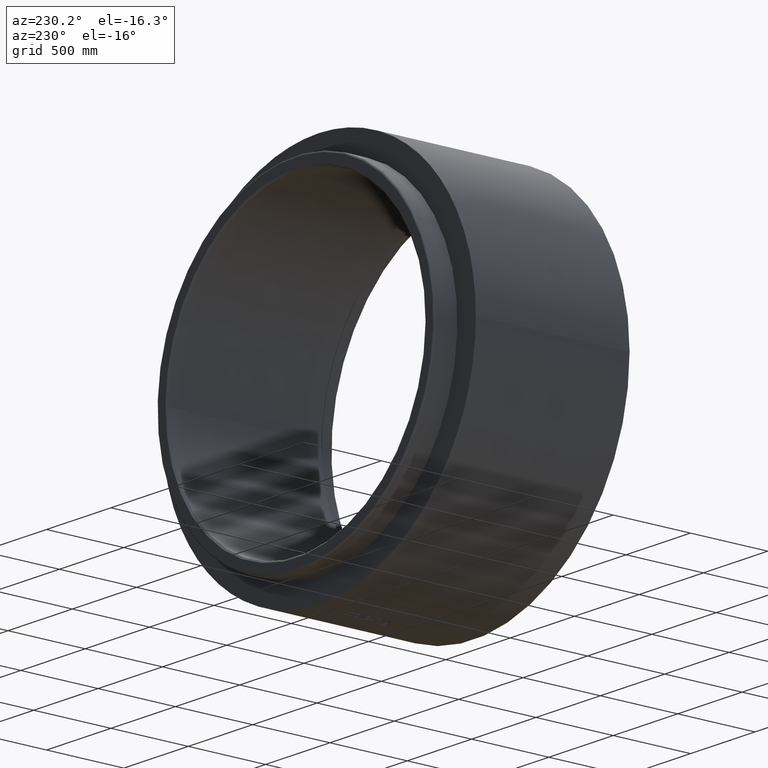
[diagram: clean part render]
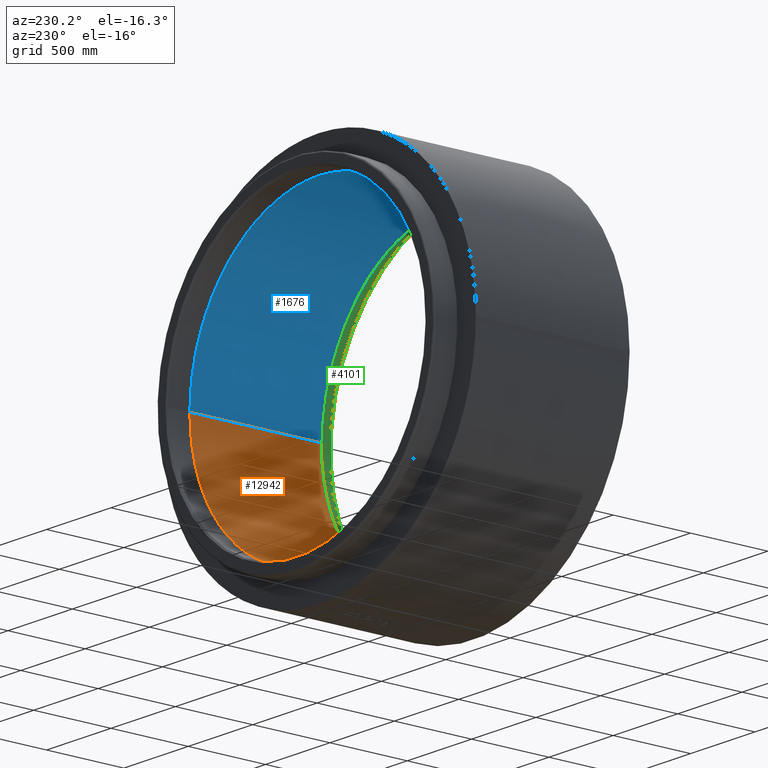
[diagram: same view with three faces highlighted in distinct colors, each labeled with its STEP entity id]
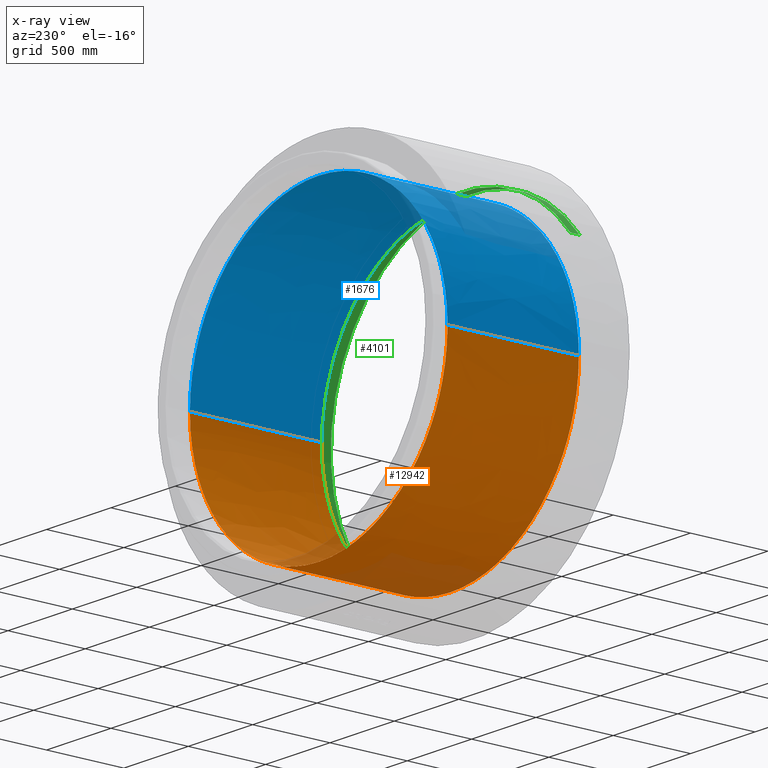
[diagram: x-ray of the same camera — body ghosted, the three highlighted faces saturated]
A machine part, auxiliary view with three faces highlighted in distinct colors.
The next image is the same camera in x-ray (body ghosted, the three faces saturated) — at least one of them is partly hidden behind the body in this view.
Their STEP definitions:

[orange] entity #12942 — the highlighted face is a freeform B-spline surface patch.
#113 = CIRCLE ( 'NONE', #19193, 1000.000000000000000 ) ;
#183 = CIRCLE ( 'NONE', #9343, 1000.000000000000000 ) ;
#251 = AXIS2_PLACEMENT_3D ( 'NONE', #13107, #20116, #2073 ) ;
#283 = CARTESIAN_POINT ( 'NONE',  ( 1000.000000000000000, -13.26044920000056848, 0.0000000000000000000 ) ) ;
#397 = CARTESIAN_POINT ( 'NONE',  ( 997.1199358540545745, -79.22253806164650314, 850.0000000000000000 ) ) ;
#470 = EDGE_CURVE ( 'NONE', #19163, #19895, #5228, .T. ) ;
#508 = DIRECTION ( 'NONE',  ( 0.0000000000000000000, 0.0000000000000000000, 1.000000000000000000 ) ) ;
#814 = CARTESIAN_POINT ( 'NONE',  ( 0.0000000000000000000, 0.0000000000000000000, 0.0000000000000000000 ) ) ;
#856 = CARTESIAN_POINT ( 'NONE',  ( 519.5757101685526322, -894.6378522045422415, 850.0000000000000000 ) ) ;
#861 = ORIENTED_EDGE ( 'NONE', *, *, #4288, .T. ) ;
#973 = CARTESIAN_POINT ( 'NONE',  ( 993.2210400670142008, -118.4713158489988984, 566.6666666666666288 ) ) ;
#1004 = CARTESIAN_POINT ( 'NONE',  ( 959.4578026637536823, 281.8523465769506515, 2.775557561562891351E-14 ) ) ;
#1087 = CARTESIAN_POINT ( 'NONE',  ( -894.6378522045424688, -519.5757101685524049, 850.0000000000000000 ) ) ;
#1192 = CARTESIAN_POINT ( 'NONE',  ( -265.2089839999998162, 1000.000000000000227, 566.6666666666666288 ) ) ;
#1302 = CARTESIAN_POINT ( 'NONE',  ( 960.6581805749138994, -352.2322685044773038, 283.3333333333333144 ) ) ;
#1347 = CARTESIAN_POINT ( 'NONE',  ( 0.0000000000000000000, 0.0000000000000000000, 850.0000000000000000 ) ) ;
#1413 = CARTESIAN_POINT ( 'NONE',  ( 960.6581805749133309, 352.2322685044769059, 566.6666666666666288 ) ) ;
#1639 = CARTESIAN_POINT ( 'NONE',  ( 999.4731892610226396, 39.72713631084230457, 850.0000000000000000 ) ) ;
#1643 = VERTEX_POINT ( 'NONE', #5456 ) ;
#2073 = DIRECTION ( 'NONE',  ( 1.000000000000000000, 0.0000000000000000000, 0.0000000000000000000 ) ) ;
#2105 = CARTESIAN_POINT ( 'NONE',  ( 479.1394168684765873, 877.7388311902170699, 850.0000000000001137 ) ) ;
#2111 = DIRECTION ( 'NONE',  ( 1.000000000000000000, 0.0000000000000000000, 0.0000000000000000000 ) ) ;
#2148 = DIRECTION ( 'NONE',  ( 0.0000000000000000000, 0.0000000000000000000, 1.000000000000000000 ) ) ;
#2344 = AXIS2_PLACEMENT_3D ( 'NONE', #5813, #16394, #7658 ) ;
#2370 = ORIENTED_EDGE ( 'NONE', *, *, #4640, .T. ) ;
#2377 = EDGE_CURVE ( 'NONE', #1643, #22157, #21765, .T. ) ;
#2496 = CARTESIAN_POINT ( 'NONE',  ( 0.0000000000000000000, 0.0000000000000000000, 0.0000000000000000000 ) ) ;
#2557 = DIRECTION ( 'NONE',  ( 0.0000000000000000000, 0.0000000000000000000, 1.000000000000000000 ) ) ;
#2580 = CARTESIAN_POINT ( 'NONE',  ( 993.2210400670140871, -118.4713158489988984, 850.0000000000000000 ) ) ;
#2698 = CARTESIAN_POINT ( 'NONE',  ( 519.5757101685532007, 894.6378522045423551, 850.0000000000000000 ) ) ;
#2745 = VERTEX_POINT ( 'NONE', #8317 ) ;
#2755 = VERTEX_POINT ( 'NONE', #18893 ) ;
#2808 = CARTESIAN_POINT ( 'NONE',  ( 993.2210400670140871, -118.4713158489988984, 0.0000000000000000000 ) ) ;
#2916 = CARTESIAN_POINT ( 'NONE',  ( 960.6581805749140131, -352.2322685044773607, 566.6666666666666288 ) ) ;
#2961 = DIRECTION ( 'NONE',  ( 0.0000000000000000000, 0.0000000000000000000, 1.000000000000000000 ) ) ;
#3025 = CARTESIAN_POINT ( 'NONE',  ( 519.5757101685532007, 894.6378522045423551, 0.0000000000000000000 ) ) ;
#3068 = CARTESIAN_POINT ( 'NONE',  ( 0.0000000000000000000, 0.0000000000000000000, 0.0000000000000000000 ) ) ;
#3249 = CARTESIAN_POINT ( 'NONE',  ( 993.2210400670139734, 118.4713158489984153, 0.0000000000000000000 ) ) ;
#3367 = CARTESIAN_POINT ( 'NONE',  ( 993.2210400670139734, 118.4713158489984153, 850.0000000000000000 ) ) ;
#3377 = DIRECTION ( 'NONE',  ( 1.000000000000000000, 0.0000000000000000000, 0.0000000000000000000 ) ) ;
#3495 = EDGE_CURVE ( 'NONE', #4359, #12434, #113, .T. ) ;
#3503 = AXIS2_PLACEMENT_3D ( 'NONE', #5816, #2148, #5705 ) ;
#3579 = AXIS2_PLACEMENT_3D ( 'NONE', #5632, #19880, #21836 ) ;
#3613 = CIRCLE ( 'NONE', #10663, 1000.000000000000000 ) ;
#3654 = EDGE_CURVE ( 'NONE', #2745, #7039, #7447, .T. ) ;
#3698 = ORIENTED_EDGE ( 'NONE', *, *, #18755, .F. ) ;
#3929 = AXIS2_PLACEMENT_3D ( 'NONE', #3068, #10062, #9843 ) ;
#3952 = CARTESIAN_POINT ( 'NONE',  ( 0.0000000000000000000, 0.0000000000000000000, 850.0000000000000000 ) ) ;
#4187 = CARTESIAN_POINT ( 'NONE',  ( 0.0000000000000000000, 0.0000000000000000000, 850.0000000000000000 ) ) ;
#4197 = AXIS2_PLACEMENT_3D ( 'NONE', #13420, #2961, #6627 ) ;
#4282 = CARTESIAN_POINT ( 'NONE',  ( 0.0000000000000000000, 0.0000000000000000000, 0.0000000000000000000 ) ) ;
#4288 = EDGE_CURVE ( 'NONE', #2755, #19114, #183, .T. ) ;
#4311 = VERTEX_POINT ( 'NONE', #15471 ) ;
#4359 = VERTEX_POINT ( 'NONE', #5124 ) ;
#4363 = EDGE_CURVE ( 'NONE', #19754, #10981, #6777, .T. ) ;
#4368 = ORIENTED_EDGE ( 'NONE', *, *, #21136, .T. ) ;
#4400 = DIRECTION ( 'NONE',  ( 1.000000000000000000, 0.0000000000000000000, 0.0000000000000000000 ) ) ;
#4420 = CARTESIAN_POINT ( 'NONE',  ( -894.6378522045420141, 519.5757101685532007, 283.3333333333333144 ) ) ;
#4534 = CARTESIAN_POINT ( 'NONE',  ( 857.1316380009430986, -557.0819243721521161, 850.0000000000000000 ) ) ;
#4580 = EDGE_CURVE ( 'NONE', #16602, #10981, #11845, .T. ) ;
#4587 = DIRECTION ( 'NONE',  ( 0.0000000000000000000, 0.0000000000000000000, 1.000000000000000000 ) ) ;
#4609 = CIRCLE ( 'NONE', #19277, 1000.000000000000000 ) ;
#4640 = EDGE_CURVE ( 'NONE', #22520, #6585, #21842, .T. ) ;
#4642 = CARTESIAN_POINT ( 'NONE',  ( -894.6378522045424688, -519.5757101685524049, 566.6666666666666288 ) ) ;
#4646 = ORIENTED_EDGE ( 'NONE', *, *, #3654, .F. ) ;
#4678 = CIRCLE ( 'NONE', #12377, 1000.000000000000000 ) ;
#4745 = CARTESIAN_POINT ( 'NONE',  ( -894.6378522045420141, 519.5757101685532007, 566.6666666666666288 ) ) ;
#4860 = CARTESIAN_POINT ( 'NONE',  ( 519.5757101685526322, -894.6378522045422415, 0.0000000000000000000 ) ) ;
#4869 = CARTESIAN_POINT ( 'NONE',  ( 0.0000000000000000000, 0.0000000000000000000, 850.0000000000000000 ) ) ;
#4970 = CARTESIAN_POINT ( 'NONE',  ( 999.4731892610225259, 39.72713631084230457, 566.6666666666666288 ) ) ;
#5008 = DIRECTION ( 'NONE',  ( 0.0000000000000000000, 0.0000000000000000000, 1.000000000000000000 ) ) ;
#5042 = CARTESIAN_POINT ( 'NONE',  ( 959.4578104416010547, 281.8523488617672683, 850.0000000000001137 ) ) ;
#5086 = CARTESIAN_POINT ( 'NONE',  ( 997.1199358540544608, 79.22253806164556522, 566.6666666666666288 ) ) ;
#5124 = CARTESIAN_POINT ( 'NONE',  ( 1000.000000000000000, 2.377992576968286065E-30, 0.0000000000000000000 ) ) ;
#5228 = CIRCLE ( 'NONE', #7811, 1000.000000000000000 ) ;
#5309 = VERTEX_POINT ( 'NONE', #15861 ) ;
#5456 = CARTESIAN_POINT ( 'NONE',  ( 877.7388231612242180, 479.1394124923798472, 2.775557561562891351E-14 ) ) ;
#5551 = CARTESIAN_POINT ( 'NONE',  ( 1000.000000000000000, -3.634245682171410863E-13, 566.6666666666666288 ) ) ;
#5582 = CARTESIAN_POINT ( 'NONE',  ( -281.8523466009128242, 959.4578026567523921, 8.326672684688674053E-14 ) ) ;
#5632 = CARTESIAN_POINT ( 'NONE',  ( 0.0000000000000000000, 0.0000000000000000000, 0.0000000000000000000 ) ) ;
#5675 = CARTESIAN_POINT ( 'NONE',  ( 1000.000000000000000, -13.26044920000056848, 850.0000000000000000 ) ) ;
#5705 = DIRECTION ( 'NONE',  ( 1.000000000000000000, 0.0000000000000000000, 0.0000000000000000000 ) ) ;
#5733 = VERTEX_POINT ( 'NONE', #18822 ) ;
#5813 = CARTESIAN_POINT ( 'NONE',  ( 0.0000000000000000000, 0.0000000000000000000, 850.0000000000000000 ) ) ;
#5816 = CARTESIAN_POINT ( 'NONE',  ( 0.0000000000000000000, 0.0000000000000000000, 0.0000000000000000000 ) ) ;
#5872 = EDGE_CURVE ( 'NONE', #5309, #6926, #4609, .T. ) ;
#5894 = CARTESIAN_POINT ( 'NONE',  ( 1000.000000000000000, -3.634245682171410863E-13, 283.3333333333333144 ) ) ;
#5903 = CARTESIAN_POINT ( 'NONE',  ( 1000.000000000000000, -13.26044920000057203, 566.6666666666666288 ) ) ;
#5924 = ORIENTED_EDGE ( 'NONE', *, *, #15863, .T. ) ;
#5958 = EDGE_LOOP ( 'NONE', ( #7541, #11371, #12597, #16775, #4646, #13489, #20907, #10529, #18877, #10416, #18487, #21018, #3698, #20156, #18484, #5924, #4368, #14666, #2370, #19444, #21671, #15998, #19159, #7574, #861, #16311 ) ) ;
#5972 = EDGE_CURVE ( 'NONE', #7039, #19754, #9361, .T. ) ;
#6023 = CARTESIAN_POINT ( 'NONE',  ( 1000.000000000000000, -3.634245682171410863E-13, 283.3333333333333144 ) ) ;
#6063 = AXIS2_PLACEMENT_3D ( 'NONE', #13745, #5008, #20975 ) ;
#6122 = CARTESIAN_POINT ( 'NONE',  ( 1000.000000000000000, -5.665538897647979663E-13, 850.0000000000000000 ) ) ;
#6138 = CARTESIAN_POINT ( 'NONE',  ( -1000.000000000000000, 265.2089840000004983, 566.6666666666666288 ) ) ;
#6230 = CARTESIAN_POINT ( 'NONE',  ( 0.0000000000000000000, 0.0000000000000000000, 0.0000000000000000000 ) ) ;
#6249 = CARTESIAN_POINT ( 'NONE',  ( -894.6378522045424688, -519.5757101685524049, 283.3333333333333144 ) ) ;
#6307 = AXIS2_PLACEMENT_3D ( 'NONE', #12689, #19700, #10959 ) ;
#6362 = CARTESIAN_POINT ( 'NONE',  ( 960.6581805749137857, -352.2322685044772470, 0.0000000000000000000 ) ) ;
#6409 = VERTEX_POINT ( 'NONE', #15184 ) ;
#6469 = CARTESIAN_POINT ( 'NONE',  ( -894.6378522045424688, -519.5757101685524049, 0.0000000000000000000 ) ) ;
#6501 = CARTESIAN_POINT ( 'NONE',  ( -877.7388240722538058, 479.1394129891508555, 2.775557561562891351E-14 ) ) ;
#6511 = CIRCLE ( 'NONE', #251, 1000.000000000000000 ) ;
#6581 = CARTESIAN_POINT ( 'NONE',  ( -1000.000000000000455, -265.2089839999995888, 566.6666666666666288 ) ) ;
#6585 = VERTEX_POINT ( 'NONE', #2105 ) ;
#6627 = DIRECTION ( 'NONE',  ( 1.000000000000000000, 0.0000000000000000000, 0.0000000000000000000 ) ) ;
#6692 = CARTESIAN_POINT ( 'NONE',  ( 1000.000000000000000, 13.26044919999960747, 566.6666666666666288 ) ) ;
#6777 = CIRCLE ( 'NONE', #6063, 1000.000000000000000 ) ;
#6806 = CARTESIAN_POINT ( 'NONE',  ( 1000.000000000000000, 13.26044919999960747, 0.0000000000000000000 ) ) ;
#6851 = CARTESIAN_POINT ( 'NONE',  ( 0.0000000000000000000, 0.0000000000000000000, 850.0000000000000000 ) ) ;
#6883 = AXIS2_PLACEMENT_3D ( 'NONE', #13611, #16942, #10143 ) ;
#6926 = VERTEX_POINT ( 'NONE', #14344 ) ;
#6996 = CIRCLE ( 'NONE', #19842, 1000.000000000000000 ) ;
#7039 = VERTEX_POINT ( 'NONE', #6501 ) ;
#7162 = CARTESIAN_POINT ( 'NONE',  ( 1000.000000000000000, 2.377992576968286065E-30, 0.0000000000000000000 ) ) ;
#7401 = CARTESIAN_POINT ( 'NONE',  ( 997.1199358540546882, -79.22253806164650314, 283.3333333333333144 ) ) ;
#7447 = CIRCLE ( 'NONE', #18089, 1000.000000000000000 ) ;
#7541 = ORIENTED_EDGE ( 'NONE', *, *, #11019, .T. ) ;
#7574 = ORIENTED_EDGE ( 'NONE', *, *, #10927, .T. ) ;
#7601 = CIRCLE ( 'NONE', #20455, 1000.000000000000000 ) ;
#7635 = CARTESIAN_POINT ( 'NONE',  ( 707.1067811865477779, 707.1067811865472095, 850.0000000000000000 ) ) ;
#7658 = DIRECTION ( 'NONE',  ( 1.000000000000000000, 0.0000000000000000000, 0.0000000000000000000 ) ) ;
#7684 = VERTEX_POINT ( 'NONE', #18028 ) ;
#7748 = FACE_OUTER_BOUND ( 'NONE', #5958, .T. ) ;
#7811 = AXIS2_PLACEMENT_3D ( 'NONE', #21640, #12906, #2111 ) ;
#7864 = CARTESIAN_POINT ( 'NONE',  ( 265.2089839999998162, -1000.000000000000455, 283.3333333333333144 ) ) ;
#7957 = DIRECTION ( 'NONE',  ( 0.0000000000000000000, 0.0000000000000000000, 1.000000000000000000 ) ) ;
#7977 = CARTESIAN_POINT ( 'NONE',  ( 960.6581805749137857, -352.2322685044772470, 850.0000000000000000 ) ) ;
#8085 = CARTESIAN_POINT ( 'NONE',  ( -1000.000000000000455, -265.2089839999995888, 850.0000000000000000 ) ) ;
#8126 = CARTESIAN_POINT ( 'NONE',  ( -1000.000000000000000, 2.832769448823989831E-13, -5.551115123125782702E-14 ) ) ;
#8181 = AXIS2_PLACEMENT_3D ( 'NONE', #8997, #508, #9225 ) ;
#8194 = CARTESIAN_POINT ( 'NONE',  ( 265.2089840000002710, 1000.000000000000455, 283.3333333333333144 ) ) ;
#8224 = EDGE_CURVE ( 'NONE', #19114, #18148, #13357, .T. ) ;
#8298 = CARTESIAN_POINT ( 'NONE',  ( -519.5757101685527459, 894.6378522045424688, 566.6666666666666288 ) ) ;
#8317 = CARTESIAN_POINT ( 'NONE',  ( -707.1067811865474368, 707.1067811865476642, 8.326672684688674053E-14 ) ) ;
#8346 = DIRECTION ( 'NONE',  ( 0.0000000000000000000, 0.0000000000000000000, 1.000000000000000000 ) ) ;
#8423 = CARTESIAN_POINT ( 'NONE',  ( -1000.000000000000000, 4.440892098500626162E-13, 850.0000000000000000 ) ) ;
#8446 = CARTESIAN_POINT ( 'NONE',  ( 707.1067811865475505, 707.1067811865475505, 1.110223024625156540E-13 ) ) ;
#8453 = CARTESIAN_POINT ( 'NONE',  ( 0.0000000000000000000, 0.0000000000000000000, 850.0000000000000000 ) ) ;
#8573 = CARTESIAN_POINT ( 'NONE',  ( 0.0000000000000000000, 0.0000000000000000000, 850.0000000000000000 ) ) ;
#8639 = CARTESIAN_POINT ( 'NONE',  ( 1000.000000000000000, -3.625572064791526827E-13, 850.0000000000000000 ) ) ;
#8997 = CARTESIAN_POINT ( 'NONE',  ( 0.0000000000000000000, 0.0000000000000000000, 0.0000000000000000000 ) ) ;
#9225 = DIRECTION ( 'NONE',  ( 1.000000000000000000, 0.0000000000000000000, 0.0000000000000000000 ) ) ;
#9343 = AXIS2_PLACEMENT_3D ( 'NONE', #8453, #12023, #14199 ) ;
#9346 = CARTESIAN_POINT ( 'NONE',  ( 1000.000000000000000, -3.625572064791526827E-13, 850.0000000000000000 ) ) ;
#9361 = CIRCLE ( 'NONE', #3503, 1000.000000000000000 ) ;
#9491 = DIRECTION ( 'NONE',  ( 1.000000000000000000, 0.0000000000000000000, 0.0000000000000000000 ) ) ;
#9576 = CARTESIAN_POINT ( 'NONE',  ( -519.5757101685534280, -894.6378522045417867, 566.6666666666666288 ) ) ;
#9690 = CARTESIAN_POINT ( 'NONE',  ( 519.5757101685532007, 894.6378522045423551, 566.6666666666666288 ) ) ;
#9800 = CARTESIAN_POINT ( 'NONE',  ( 857.1316380009430986, -557.0819243721521161, 283.3333333333333144 ) ) ;
#9843 = DIRECTION ( 'NONE',  ( 1.000000000000000000, 0.0000000000000000000, 0.0000000000000000000 ) ) ;
#9907 = CARTESIAN_POINT ( 'NONE',  ( 857.1316380009430986, -557.0819243721521161, 566.6666666666666288 ) ) ;
#10017 = CARTESIAN_POINT ( 'NONE',  ( -894.6378522045420141, 519.5757101685532007, 850.0000000000000000 ) ) ;
#10062 = DIRECTION ( 'NONE',  ( 0.0000000000000000000, 0.0000000000000000000, 1.000000000000000000 ) ) ;
#10129 = CARTESIAN_POINT ( 'NONE',  ( 993.2210400670139734, 118.4713158489984295, 283.3333333333333144 ) ) ;
#10143 = DIRECTION ( 'NONE',  ( 1.000000000000000000, 0.0000000000000000000, 0.0000000000000000000 ) ) ;
#10176 = DIRECTION ( 'NONE',  ( 0.0000000000000000000, 0.0000000000000000000, 1.000000000000000000 ) ) ;
#10361 = CARTESIAN_POINT ( 'NONE',  ( 960.6581805749135583, 352.2322685044768491, 0.0000000000000000000 ) ) ;
#10416 = ORIENTED_EDGE ( 'NONE', *, *, #5872, .F. ) ;
#10529 = ORIENTED_EDGE ( 'NONE', *, *, #470, .F. ) ;
#10606 = DIRECTION ( 'NONE',  ( 0.0000000000000000000, 0.0000000000000000000, 1.000000000000000000 ) ) ;
#10663 = AXIS2_PLACEMENT_3D ( 'NONE', #1347, #10176, #11800 ) ;
#10927 = EDGE_CURVE ( 'NONE', #15377, #2755, #3613, .T. ) ;
#10959 = DIRECTION ( 'NONE',  ( 1.000000000000000000, 0.0000000000000000000, 0.0000000000000000000 ) ) ;
#10981 = VERTEX_POINT ( 'NONE', #8126 ) ;
#11019 = EDGE_CURVE ( 'NONE', #18148, #16602, #6996, .T. ) ;
#11086 = EDGE_CURVE ( 'NONE', #12974, #4311, #11163, .T. ) ;
#11128 = EDGE_CURVE ( 'NONE', #4311, #15377, #17037, .T. ) ;
#11163 = CIRCLE ( 'NONE', #4197, 1000.000000000000000 ) ;
#11245 = CARTESIAN_POINT ( 'NONE',  ( -959.4578016754026066, 281.8523462602058771, 0.0000000000000000000 ) ) ;
#11343 = DIRECTION ( 'NONE',  ( 0.0000000000000000000, 0.0000000000000000000, 1.000000000000000000 ) ) ;
#11371 = ORIENTED_EDGE ( 'NONE', *, *, #4580, .T. ) ;
#11422 = EDGE_CURVE ( 'NONE', #6926, #19163, #21255, .T. ) ;
#11430 = CARTESIAN_POINT ( 'NONE',  ( -519.5757101685527459, 894.6378522045425825, 0.0000000000000000000 ) ) ;
#11526 = CARTESIAN_POINT ( 'NONE',  ( 1.110223024625156540E-13, 1000.000000000000000, 1.665334536937734811E-13 ) ) ;
#11540 = CARTESIAN_POINT ( 'NONE',  ( -519.5757101685534280, -894.6378522045417867, 0.0000000000000000000 ) ) ;
#11648 = CIRCLE ( 'NONE', #21157, 1000.000000000000000 ) ;
#11649 = CARTESIAN_POINT ( 'NONE',  ( -1000.000000000000455, -265.2089839999995888, 0.0000000000000000000 ) ) ;
#11653 = VERTEX_POINT ( 'NONE', #6122 ) ;
#11754 = CARTESIAN_POINT ( 'NONE',  ( -1000.000000000000455, -265.2089839999995888, 283.3333333333333144 ) ) ;
#11800 = DIRECTION ( 'NONE',  ( 1.000000000000000000, 0.0000000000000000000, 0.0000000000000000000 ) ) ;
#11809 = DIRECTION ( 'NONE',  ( 1.000000000000000000, 0.0000000000000000000, 0.0000000000000000000 ) ) ;
#11845 = B_SPLINE_CURVE_WITH_KNOTS ( 'NONE', 3,
 ( #8423, #15443, #19115, #18883 ),
 .UNSPECIFIED., .F., .F.,
 ( 4, 4 ),
 ( 0.0000000000000000000, 1.000000000000000000 ),
 .UNSPECIFIED. ) ;
#11866 = CARTESIAN_POINT ( 'NONE',  ( 857.1316380009430986, -557.0819243721521161, 0.0000000000000000000 ) ) ;
#11894 = DIRECTION ( 'NONE',  ( 0.0000000000000000000, 0.0000000000000000000, 1.000000000000000000 ) ) ;
#11915 = DIRECTION ( 'NONE',  ( 0.0000000000000000000, 0.0000000000000000000, 1.000000000000000000 ) ) ;
#12023 = DIRECTION ( 'NONE',  ( 0.0000000000000000000, 0.0000000000000000000, 1.000000000000000000 ) ) ;
#12096 = CARTESIAN_POINT ( 'NONE',  ( 993.2210400670139734, 118.4713158489984295, 566.6666666666666288 ) ) ;
#12105 = DIRECTION ( 'NONE',  ( 0.0000000000000000000, 0.0000000000000000000, 1.000000000000000000 ) ) ;
#12201 = CARTESIAN_POINT ( 'NONE',  ( -479.1394178595961080, 877.7388330135169099, 849.9999999999998863 ) ) ;
#12377 = AXIS2_PLACEMENT_3D ( 'NONE', #13539, #4587, #11809 ) ;
#12434 = VERTEX_POINT ( 'NONE', #1004 ) ;
#12597 = ORIENTED_EDGE ( 'NONE', *, *, #4363, .F. ) ;
#12689 = CARTESIAN_POINT ( 'NONE',  ( 0.0000000000000000000, 0.0000000000000000000, 850.0000000000000000 ) ) ;
#12745 = CIRCLE ( 'NONE', #3929, 1000.000000000000000 ) ;
#12791 = CARTESIAN_POINT ( 'NONE',  ( 1000.000000000000000, -5.665538897647979663E-13, 850.0000000000000000 ) ) ;
#12906 = DIRECTION ( 'NONE',  ( 0.0000000000000000000, 0.0000000000000000000, 1.000000000000000000 ) ) ;
#12942 = ADVANCED_FACE ( 'NONE', ( #7748 ), #15428, .F. ) ;
#12974 = VERTEX_POINT ( 'NONE', #15545 ) ;
#12989 = DIRECTION ( 'NONE',  ( 0.0000000000000000000, 0.0000000000000000000, 1.000000000000000000 ) ) ;
#13107 = CARTESIAN_POINT ( 'NONE',  ( 0.0000000000000000000, 0.0000000000000000000, 850.0000000000000000 ) ) ;
#13149 = CARTESIAN_POINT ( 'NONE',  ( -265.2089840000007257, -1000.000000000000000, 566.6666666666666288 ) ) ;
#13265 = CARTESIAN_POINT ( 'NONE',  ( 519.5757101685526322, -894.6378522045422415, 283.3333333333333144 ) ) ;
#13357 = CIRCLE ( 'NONE', #2344, 1000.000000000000000 ) ;
#13377 = CARTESIAN_POINT ( 'NONE',  ( -265.2089840000007257, -1000.000000000000000, 0.0000000000000000000 ) ) ;
#13420 = CARTESIAN_POINT ( 'NONE',  ( 0.0000000000000000000, 0.0000000000000000000, 850.0000000000000000 ) ) ;
#13485 = CARTESIAN_POINT ( 'NONE',  ( 265.2089840000002710, 1000.000000000000227, 0.0000000000000000000 ) ) ;
#13489 = ORIENTED_EDGE ( 'NONE', *, *, #17961, .F. ) ;
#13539 = CARTESIAN_POINT ( 'NONE',  ( 0.0000000000000000000, 0.0000000000000000000, 0.0000000000000000000 ) ) ;
#13592 = CARTESIAN_POINT ( 'NONE',  ( 857.1316380009432123, 557.0819243721520024, 283.3333333333333144 ) ) ;
#13611 = CARTESIAN_POINT ( 'NONE',  ( 0.0000000000000000000, 0.0000000000000000000, 0.0000000000000000000 ) ) ;
#13652 = CARTESIAN_POINT ( 'NONE',  ( -1000.000000000000000, 4.440892098500626162E-13, 850.0000000000000000 ) ) ;
#13708 = CARTESIAN_POINT ( 'NONE',  ( 1000.000000000000000, 13.26044919999960747, 283.3333333333333144 ) ) ;
#13745 = CARTESIAN_POINT ( 'NONE',  ( 0.0000000000000000000, 0.0000000000000000000, 0.0000000000000000000 ) ) ;
#13844 = AXIS2_PLACEMENT_3D ( 'NONE', #814, #12989, #20001 ) ;
#14051 = VERTEX_POINT ( 'NONE', #5042 ) ;
#14074 = DIRECTION ( 'NONE',  ( 1.000000000000000000, 0.0000000000000000000, 0.0000000000000000000 ) ) ;
#14199 = DIRECTION ( 'NONE',  ( 1.000000000000000000, 0.0000000000000000000, 0.0000000000000000000 ) ) ;
#14303 = CARTESIAN_POINT ( 'NONE',  ( 997.1199358540546882, -79.22253806164650314, 566.6666666666666288 ) ) ;
#14344 = CARTESIAN_POINT ( 'NONE',  ( 281.8523462707589715, 959.4578016722422262, 8.326672684688674053E-14 ) ) ;
#14419 = CARTESIAN_POINT ( 'NONE',  ( 999.4731892610226396, -39.72713631084327091, 283.3333333333333144 ) ) ;
#14532 = DIRECTION ( 'NONE',  ( 0.0000000000000000000, 0.0000000000000000000, 1.000000000000000000 ) ) ;
#14666 = ORIENTED_EDGE ( 'NONE', *, *, #21467, .T. ) ;
#14760 = CARTESIAN_POINT ( 'NONE',  ( 999.4731892610226396, -39.72713631084327091, 850.0000000000000000 ) ) ;
#14874 = CARTESIAN_POINT ( 'NONE',  ( -519.5757101685534280, -894.6378522045417867, 283.3333333333333144 ) ) ;
#14992 = CARTESIAN_POINT ( 'NONE',  ( 857.1316380009433260, 557.0819243721520024, 0.0000000000000000000 ) ) ;
#15102 = CARTESIAN_POINT ( 'NONE',  ( -519.5757101685534280, -894.6378522045417867, 850.0000000000000000 ) ) ;
#15184 = CARTESIAN_POINT ( 'NONE',  ( 877.7388330090686850, 479.1394178676975457, 849.9999999999998863 ) ) ;
#15214 = CARTESIAN_POINT ( 'NONE',  ( -1000.000000000000000, 265.2089840000004983, 0.0000000000000000000 ) ) ;
#15324 = CARTESIAN_POINT ( 'NONE',  ( 857.1316380009433260, 557.0819243721520024, 850.0000000000000000 ) ) ;
#15377 = VERTEX_POINT ( 'NONE', #12201 ) ;
#15428 = B_SPLINE_SURFACE_WITH_KNOTS ( 'NONE', 3, 3, ( 
 ( #9346, #21646, #6023, #21413 ),
 ( #5675, #5903, #16254, #283 ),
 ( #14760, #21763, #14419, #16141 ),
 ( #397, #14303, #7401, #20042 ),
 ( #2580, #973, #20593, #2808 ),
 ( #7977, #2916, #1302, #6362 ),
 ( #4534, #9907, #9800, #11866 ),
 ( #856, #20380, #13265, #4860 ),
 ( #16597, #22211, #7864, #18873 ),
 ( #16822, #13149, #16928, #13377 ),
 ( #15102, #9576, #14874, #11540 ),
 ( #1087, #4642, #6249, #6469 ),
 ( #8085, #6581, #11754, #11649 ),
 ( #21879, #6138, #20160, #15214 ),
 ( #10017, #4745, #4420, #22103 ),
 ( #18548, #8298, #20272, #11430 ),
 ( #18654, #1192, #18760, #16713 ),
 ( #17042, #18434, #8194, #13485 ),
 ( #2698, #9690, #20487, #3025 ),
 ( #15324, #22322, #13592, #14992 ),
 ( #21991, #1413, #17268, #10361 ),
 ( #3367, #12096, #10129, #3249 ),
 ( #17381, #5086, #17154, #22434 ),
 ( #1639, #4970, #18990, #19105 ),
 ( #20827, #6692, #13708, #6806 ),
 ( #8639, #22549, #20711, #15659 ) ),
 .UNSPECIFIED., .T., .F., .F.,
 ( 4, 1, 1, 1, 1, 2, 2, 2, 2, 2, 2, 2, 1, 1, 1, 1, 4 ),
 ( 4, 4 ),
 ( 0.0000000000000000000, 0.006250000000000088818, 0.01249999999999995559, 0.01875000000000004441, 0.02499999999999991118, 0.1250000000000000000, 0.2500000000000000000, 0.3750000000000000000, 0.5000000000000000000, 0.6250000000000000000, 0.7500000000000000000, 0.8750000000000000000, 0.9749999999999999778, 0.9812499999999999556, 0.9875000000000000444, 0.9937500000000000222, 1.000000000000000000 ),
 ( 0.0000000000000000000, 1.000000000000000000 ),
 .UNSPECIFIED. ) ;
#15443 = CARTESIAN_POINT ( 'NONE',  ( -1000.000000000000227, 4.440892098500626162E-13, 566.6666666666666288 ) ) ;
#15471 = CARTESIAN_POINT ( 'NONE',  ( -281.8523488860598150, 959.4578104344046778, 849.9999999999998863 ) ) ;
#15545 = CARTESIAN_POINT ( 'NONE',  ( 3.885780586188047891E-13, 1000.000000000000000, 850.0000000000000000 ) ) ;
#15659 = CARTESIAN_POINT ( 'NONE',  ( 1000.000000000000000, -3.625572064791526827E-13, 0.0000000000000000000 ) ) ;
#15838 = AXIS2_PLACEMENT_3D ( 'NONE', #6851, #11915, #17200 ) ;
#15861 = CARTESIAN_POINT ( 'NONE',  ( 479.1394129846663077, 877.7388240747017107, 8.326672684688674053E-14 ) ) ;
#15863 = EDGE_CURVE ( 'NONE', #11653, #14051, #11648, .T. ) ;
#15866 = EDGE_CURVE ( 'NONE', #11653, #4359, #22550, .T. ) ;
#15998 = ORIENTED_EDGE ( 'NONE', *, *, #11086, .T. ) ;
#16141 = CARTESIAN_POINT ( 'NONE',  ( 999.4731892610226396, -39.72713631084327091, 0.0000000000000000000 ) ) ;
#16214 = CIRCLE ( 'NONE', #6307, 1000.000000000000000 ) ;
#16246 = DIRECTION ( 'NONE',  ( 1.000000000000000000, 0.0000000000000000000, 0.0000000000000000000 ) ) ;
#16254 = CARTESIAN_POINT ( 'NONE',  ( 1000.000000000000000, -13.26044920000057203, 283.3333333333333144 ) ) ;
#16311 = ORIENTED_EDGE ( 'NONE', *, *, #8224, .T. ) ;
#16394 = DIRECTION ( 'NONE',  ( 0.0000000000000000000, 0.0000000000000000000, 1.000000000000000000 ) ) ;
#16426 = CIRCLE ( 'NONE', #13844, 1000.000000000000000 ) ;
#16439 = CARTESIAN_POINT ( 'NONE',  ( -959.4578124397140755, 281.8523494227334822, 850.0000000000001137 ) ) ;
#16567 = EDGE_CURVE ( 'NONE', #22157, #5309, #4678, .T. ) ;
#16576 = DIRECTION ( 'NONE',  ( 1.000000000000000000, 0.0000000000000000000, 0.0000000000000000000 ) ) ;
#16597 = CARTESIAN_POINT ( 'NONE',  ( 265.2089839999998162, -1000.000000000000455, 850.0000000000000000 ) ) ;
#16602 = VERTEX_POINT ( 'NONE', #13652 ) ;
#16713 = CARTESIAN_POINT ( 'NONE',  ( -265.2089839999998162, 1000.000000000000227, 0.0000000000000000000 ) ) ;
#16775 = ORIENTED_EDGE ( 'NONE', *, *, #5972, .F. ) ;
#16822 = CARTESIAN_POINT ( 'NONE',  ( -265.2089840000007257, -1000.000000000000000, 850.0000000000000000 ) ) ;
#16928 = CARTESIAN_POINT ( 'NONE',  ( -265.2089840000007257, -1000.000000000000000, 283.3333333333333144 ) ) ;
#16942 = DIRECTION ( 'NONE',  ( 0.0000000000000000000, 0.0000000000000000000, 1.000000000000000000 ) ) ;
#17037 = CIRCLE ( 'NONE', #15838, 1000.000000000000000 ) ;
#17042 = CARTESIAN_POINT ( 'NONE',  ( 265.2089840000002710, 1000.000000000000227, 850.0000000000000000 ) ) ;
#17154 = CARTESIAN_POINT ( 'NONE',  ( 997.1199358540544608, 79.22253806164556522, 283.3333333333333144 ) ) ;
#17200 = DIRECTION ( 'NONE',  ( 1.000000000000000000, 0.0000000000000000000, 0.0000000000000000000 ) ) ;
#17204 = EDGE_CURVE ( 'NONE', #6585, #5733, #7601, .T. ) ;
#17268 = CARTESIAN_POINT ( 'NONE',  ( 960.6581805749134446, 352.2322685044769059, 283.3333333333333144 ) ) ;
#17381 = CARTESIAN_POINT ( 'NONE',  ( 997.1199358540544608, 79.22253806164556522, 850.0000000000000000 ) ) ;
#17782 = AXIS2_PLACEMENT_3D ( 'NONE', #4869, #12105, #3377 ) ;
#17961 = EDGE_CURVE ( 'NONE', #7684, #2745, #22271, .T. ) ;
#18004 = EDGE_CURVE ( 'NONE', #19895, #7684, #16426, .T. ) ;
#18028 = CARTESIAN_POINT ( 'NONE',  ( -479.1394124842601627, 877.7388231656404969, 5.551115123125782702E-14 ) ) ;
#18089 = AXIS2_PLACEMENT_3D ( 'NONE', #6230, #2557, #16576 ) ;
#18148 = VERTEX_POINT ( 'NONE', #16439 ) ;
#18159 = EDGE_CURVE ( 'NONE', #5733, #12974, #6511, .T. ) ;
#18434 = CARTESIAN_POINT ( 'NONE',  ( 265.2089840000002710, 1000.000000000000227, 566.6666666666666288 ) ) ;
#18484 = ORIENTED_EDGE ( 'NONE', *, *, #15866, .F. ) ;
#18487 = ORIENTED_EDGE ( 'NONE', *, *, #16567, .F. ) ;
#18548 = CARTESIAN_POINT ( 'NONE',  ( -519.5757101685527459, 894.6378522045425825, 850.0000000000000000 ) ) ;
#18654 = CARTESIAN_POINT ( 'NONE',  ( -265.2089839999998162, 1000.000000000000227, 850.0000000000000000 ) ) ;
#18755 = EDGE_CURVE ( 'NONE', #12434, #1643, #12745, .T. ) ;
#18760 = CARTESIAN_POINT ( 'NONE',  ( -265.2089839999998162, 1000.000000000000455, 283.3333333333333144 ) ) ;
#18822 = CARTESIAN_POINT ( 'NONE',  ( 281.8523494333110762, 959.4578124366377097, 849.9999999999998863 ) ) ;
#18873 = CARTESIAN_POINT ( 'NONE',  ( 265.2089839999998162, -1000.000000000000455, 0.0000000000000000000 ) ) ;
#18877 = ORIENTED_EDGE ( 'NONE', *, *, #11422, .F. ) ;
#18883 = CARTESIAN_POINT ( 'NONE',  ( -1000.000000000000000, 2.832769448823989831E-13, -5.551115123125782702E-14 ) ) ;
#18893 = CARTESIAN_POINT ( 'NONE',  ( -707.1067811865472095, 707.1067811865477779, 850.0000000000000000 ) ) ;
#18990 = CARTESIAN_POINT ( 'NONE',  ( 999.4731892610226396, 39.72713631084230457, 283.3333333333333144 ) ) ;
#19105 = CARTESIAN_POINT ( 'NONE',  ( 999.4731892610226396, 39.72713631084230457, 0.0000000000000000000 ) ) ;
#19114 = VERTEX_POINT ( 'NONE', #19908 ) ;
#19115 = CARTESIAN_POINT ( 'NONE',  ( -1000.000000000000227, 4.440892098500626162E-13, 283.3333333333333144 ) ) ;
#19159 = ORIENTED_EDGE ( 'NONE', *, *, #11128, .T. ) ;
#19163 = VERTEX_POINT ( 'NONE', #11526 ) ;
#19193 = AXIS2_PLACEMENT_3D ( 'NONE', #4282, #7957, #4400 ) ;
#19277 = AXIS2_PLACEMENT_3D ( 'NONE', #2496, #11343, #9491 ) ;
#19444 = ORIENTED_EDGE ( 'NONE', *, *, #17204, .T. ) ;
#19504 = CIRCLE ( 'NONE', #20978, 1000.000000000000000 ) ;
#19700 = DIRECTION ( 'NONE',  ( 0.0000000000000000000, 0.0000000000000000000, 1.000000000000000000 ) ) ;
#19754 = VERTEX_POINT ( 'NONE', #11245 ) ;
#19842 = AXIS2_PLACEMENT_3D ( 'NONE', #8573, #8346, #22369 ) ;
#19880 = DIRECTION ( 'NONE',  ( 0.0000000000000000000, 0.0000000000000000000, 1.000000000000000000 ) ) ;
#19895 = VERTEX_POINT ( 'NONE', #5582 ) ;
#19908 = CARTESIAN_POINT ( 'NONE',  ( -877.7388311878137301, 479.1394168729856915, 849.9999999999998863 ) ) ;
#20001 = DIRECTION ( 'NONE',  ( 1.000000000000000000, 0.0000000000000000000, 0.0000000000000000000 ) ) ;
#20042 = CARTESIAN_POINT ( 'NONE',  ( 997.1199358540545745, -79.22253806164650314, 0.0000000000000000000 ) ) ;
#20116 = DIRECTION ( 'NONE',  ( 0.0000000000000000000, 0.0000000000000000000, 1.000000000000000000 ) ) ;
#20156 = ORIENTED_EDGE ( 'NONE', *, *, #3495, .F. ) ;
#20160 = CARTESIAN_POINT ( 'NONE',  ( -1000.000000000000000, 265.2089840000004983, 283.3333333333333144 ) ) ;
#20272 = CARTESIAN_POINT ( 'NONE',  ( -519.5757101685527459, 894.6378522045423551, 283.3333333333333144 ) ) ;
#20380 = CARTESIAN_POINT ( 'NONE',  ( 519.5757101685526322, -894.6378522045422415, 566.6666666666666288 ) ) ;
#20455 = AXIS2_PLACEMENT_3D ( 'NONE', #20852, #11894, #14074 ) ;
#20487 = CARTESIAN_POINT ( 'NONE',  ( 519.5757101685532007, 894.6378522045423551, 283.3333333333333144 ) ) ;
#20593 = CARTESIAN_POINT ( 'NONE',  ( 993.2210400670142008, -118.4713158489988984, 283.3333333333333144 ) ) ;
#20711 = CARTESIAN_POINT ( 'NONE',  ( 1000.000000000000000, -3.634245682171410863E-13, 283.3333333333333144 ) ) ;
#20827 = CARTESIAN_POINT ( 'NONE',  ( 1000.000000000000000, 13.26044919999960747, 850.0000000000000000 ) ) ;
#20852 = CARTESIAN_POINT ( 'NONE',  ( 0.0000000000000000000, 0.0000000000000000000, 850.0000000000000000 ) ) ;
#20907 = ORIENTED_EDGE ( 'NONE', *, *, #18004, .F. ) ;
#20975 = DIRECTION ( 'NONE',  ( 1.000000000000000000, 0.0000000000000000000, 0.0000000000000000000 ) ) ;
#20978 = AXIS2_PLACEMENT_3D ( 'NONE', #4187, #14532, #21301 ) ;
#21018 = ORIENTED_EDGE ( 'NONE', *, *, #2377, .F. ) ;
#21136 = EDGE_CURVE ( 'NONE', #14051, #6409, #19504, .T. ) ;
#21157 = AXIS2_PLACEMENT_3D ( 'NONE', #3952, #10606, #16246 ) ;
#21255 = CIRCLE ( 'NONE', #6883, 1000.000000000000000 ) ;
#21301 = DIRECTION ( 'NONE',  ( 1.000000000000000000, 0.0000000000000000000, 0.0000000000000000000 ) ) ;
#21413 = CARTESIAN_POINT ( 'NONE',  ( 1000.000000000000000, -3.625572064791526827E-13, 0.0000000000000000000 ) ) ;
#21467 = EDGE_CURVE ( 'NONE', #6409, #22520, #16214, .T. ) ;
#21640 = CARTESIAN_POINT ( 'NONE',  ( 0.0000000000000000000, 0.0000000000000000000, 0.0000000000000000000 ) ) ;
#21646 = CARTESIAN_POINT ( 'NONE',  ( 1000.000000000000000, -3.634245682171410863E-13, 566.6666666666666288 ) ) ;
#21671 = ORIENTED_EDGE ( 'NONE', *, *, #18159, .T. ) ;
#21763 = CARTESIAN_POINT ( 'NONE',  ( 999.4731892610225259, -39.72713631084327091, 566.6666666666666288 ) ) ;
#21765 = CIRCLE ( 'NONE', #8181, 1000.000000000000000 ) ;
#21836 = DIRECTION ( 'NONE',  ( 1.000000000000000000, 0.0000000000000000000, 0.0000000000000000000 ) ) ;
#21842 = CIRCLE ( 'NONE', #17782, 1000.000000000000000 ) ;
#21879 = CARTESIAN_POINT ( 'NONE',  ( -1000.000000000000000, 265.2089840000004983, 850.0000000000000000 ) ) ;
#21991 = CARTESIAN_POINT ( 'NONE',  ( 960.6581805749135583, 352.2322685044768491, 850.0000000000000000 ) ) ;
#22103 = CARTESIAN_POINT ( 'NONE',  ( -894.6378522045420141, 519.5757101685532007, 0.0000000000000000000 ) ) ;
#22157 = VERTEX_POINT ( 'NONE', #8446 ) ;
#22211 = CARTESIAN_POINT ( 'NONE',  ( 265.2089839999998162, -1000.000000000000455, 566.6666666666666288 ) ) ;
#22271 = CIRCLE ( 'NONE', #3579, 1000.000000000000000 ) ;
#22322 = CARTESIAN_POINT ( 'NONE',  ( 857.1316380009432123, 557.0819243721520024, 566.6666666666666288 ) ) ;
#22369 = DIRECTION ( 'NONE',  ( 1.000000000000000000, 0.0000000000000000000, 0.0000000000000000000 ) ) ;
#22434 = CARTESIAN_POINT ( 'NONE',  ( 997.1199358540544608, 79.22253806164556522, 0.0000000000000000000 ) ) ;
#22520 = VERTEX_POINT ( 'NONE', #7635 ) ;
#22549 = CARTESIAN_POINT ( 'NONE',  ( 1000.000000000000000, -3.634245682171410863E-13, 566.6666666666666288 ) ) ;
#22550 = B_SPLINE_CURVE_WITH_KNOTS ( 'NONE', 3,
 ( #12791, #5551, #5894, #7162 ),
 .UNSPECIFIED., .F., .F.,
 ( 4, 4 ),
 ( 0.0000000000000000000, 1.000000000000000000 ),
 .UNSPECIFIED. ) ;

[blue] entity #1676 — the highlighted face is a freeform B-spline surface patch.
#21 = CARTESIAN_POINT ( 'NONE',  ( 1000.000000000000000, -3.625572064791526827E-13, 850.0000000000000000 ) ) ;
#159 = CARTESIAN_POINT ( 'NONE',  ( 707.1067811865473232, -707.1067811865477779, -1.387778780781445676E-13 ) ) ;
#403 = CARTESIAN_POINT ( 'NONE',  ( 1000.000000000000000, -3.634245682171410863E-13, 566.6666666666666288 ) ) ;
#572 = CIRCLE ( 'NONE', #22209, 1000.000000000000000 ) ;
#631 = CARTESIAN_POINT ( 'NONE',  ( 857.1316380009430986, -557.0819243721521161, 283.3333333333333144 ) ) ;
#686 = VERTEX_POINT ( 'NONE', #3140 ) ;
#749 = CARTESIAN_POINT ( 'NONE',  ( -519.5757101685527459, 894.6378522045423551, 283.3333333333333144 ) ) ;
#778 = ORIENTED_EDGE ( 'NONE', *, *, #1297, .T. ) ;
#804 = ORIENTED_EDGE ( 'NONE', *, *, #9812, .T. ) ;
#805 = AXIS2_PLACEMENT_3D ( 'NONE', #2349, #2123, #14306 ) ;
#862 = CARTESIAN_POINT ( 'NONE',  ( -894.6378522045420141, 519.5757101685532007, 0.0000000000000000000 ) ) ;
#978 = CARTESIAN_POINT ( 'NONE',  ( 519.5757101685526322, -894.6378522045422415, 566.6666666666666288 ) ) ;
#990 = EDGE_CURVE ( 'NONE', #12264, #9179, #5973, .T. ) ;
#1011 = DIRECTION ( 'NONE',  ( 0.0000000000000000000, 0.0000000000000000000, 1.000000000000000000 ) ) ;
#1092 = CARTESIAN_POINT ( 'NONE',  ( -519.5757101685527459, 894.6378522045425825, 850.0000000000000000 ) ) ;
#1297 = EDGE_CURVE ( 'NONE', #16602, #12594, #15879, .T. ) ;
#1362 = AXIS2_PLACEMENT_3D ( 'NONE', #13309, #22145, #9949 ) ;
#1390 = EDGE_CURVE ( 'NONE', #686, #18818, #18462, .T. ) ;
#1522 = CARTESIAN_POINT ( 'NONE',  ( 999.4731892610226396, 39.72713631084230457, 0.0000000000000000000 ) ) ;
#1579 = ORIENTED_EDGE ( 'NONE', *, *, #16566, .F. ) ;
#1676 = ADVANCED_FACE ( 'NONE', ( #4078 ), #18538, .F. ) ;
#1748 = CARTESIAN_POINT ( 'NONE',  ( 960.6581805749133309, 352.2322685044769059, 566.6666666666666288 ) ) ;
#1855 = CARTESIAN_POINT ( 'NONE',  ( 1000.000000000000000, 13.26044919999960747, 0.0000000000000000000 ) ) ;
#1949 = AXIS2_PLACEMENT_3D ( 'NONE', #11290, #11522, #13129 ) ;
#1953 = DIRECTION ( 'NONE',  ( 0.0000000000000000000, 0.0000000000000000000, 1.000000000000000000 ) ) ;
#2011 = CARTESIAN_POINT ( 'NONE',  ( 1000.000000000000000, -3.625572064791526827E-13, 0.0000000000000000000 ) ) ;
#2086 = EDGE_CURVE ( 'NONE', #18224, #11875, #21383, .T. ) ;
#2112 = CIRCLE ( 'NONE', #3217, 1000.000000000000000 ) ;
#2123 = DIRECTION ( 'NONE',  ( 0.0000000000000000000, 0.0000000000000000000, 1.000000000000000000 ) ) ;
#2238 = CARTESIAN_POINT ( 'NONE',  ( 997.1199358540545745, -79.22253806164650314, 850.0000000000000000 ) ) ;
#2256 = ORIENTED_EDGE ( 'NONE', *, *, #2086, .F. ) ;
#2349 = CARTESIAN_POINT ( 'NONE',  ( 0.0000000000000000000, 0.0000000000000000000, 850.0000000000000000 ) ) ;
#2352 = CARTESIAN_POINT ( 'NONE',  ( 993.2210400670140871, -118.4713158489988984, 850.0000000000000000 ) ) ;
#2434 = EDGE_CURVE ( 'NONE', #10981, #3336, #20297, .T. ) ;
#2471 = CARTESIAN_POINT ( 'NONE',  ( -1000.000000000000000, 265.2089840000004983, 0.0000000000000000000 ) ) ;
#2586 = CARTESIAN_POINT ( 'NONE',  ( 960.6581805749138994, -352.2322685044773038, 283.3333333333333144 ) ) ;
#2641 = ORIENTED_EDGE ( 'NONE', *, *, #3652, .F. ) ;
#2704 = CARTESIAN_POINT ( 'NONE',  ( -265.2089840000007257, -1000.000000000000000, 0.0000000000000000000 ) ) ;
#2790 = DIRECTION ( 'NONE',  ( 1.000000000000000000, 0.0000000000000000000, 0.0000000000000000000 ) ) ;
#2813 = CARTESIAN_POINT ( 'NONE',  ( 519.5757101685532007, 894.6378522045423551, 0.0000000000000000000 ) ) ;
#2843 = CIRCLE ( 'NONE', #14205, 1000.000000000000000 ) ;
#2972 = ORIENTED_EDGE ( 'NONE', *, *, #1390, .F. ) ;
#2991 = CARTESIAN_POINT ( 'NONE',  ( 0.0000000000000000000, 0.0000000000000000000, 850.0000000000000000 ) ) ;
#3005 = CIRCLE ( 'NONE', #805, 1000.000000000000000 ) ;
#3030 = CARTESIAN_POINT ( 'NONE',  ( 0.0000000000000000000, 0.0000000000000000000, 850.0000000000000000 ) ) ;
#3130 = CARTESIAN_POINT ( 'NONE',  ( 1000.000000000000000, -3.634245682171410863E-13, 566.6666666666666288 ) ) ;
#3140 = CARTESIAN_POINT ( 'NONE',  ( -479.1394129716226757, -877.7388240818810345, -1.110223024625156540E-13 ) ) ;
#3217 = AXIS2_PLACEMENT_3D ( 'NONE', #21747, #9447, #6008 ) ;
#3231 = DIRECTION ( 'NONE',  ( 0.0000000000000000000, 0.0000000000000000000, 1.000000000000000000 ) ) ;
#3297 = CARTESIAN_POINT ( 'NONE',  ( 0.0000000000000000000, 0.0000000000000000000, 0.0000000000000000000 ) ) ;
#3336 = VERTEX_POINT ( 'NONE', #18298 ) ;
#3364 = CARTESIAN_POINT ( 'NONE',  ( -959.4578104376490728, -281.8523488748821819, 849.9999999999998863 ) ) ;
#3460 = CARTESIAN_POINT ( 'NONE',  ( 0.0000000000000000000, 0.0000000000000000000, 850.0000000000000000 ) ) ;
#3469 = CARTESIAN_POINT ( 'NONE',  ( 707.1067811865470958, -707.1067811865478916, 850.0000000000000000 ) ) ;
#3476 = CARTESIAN_POINT ( 'NONE',  ( 999.4731892610225259, 39.72713631084230457, 566.6666666666666288 ) ) ;
#3590 = EDGE_CURVE ( 'NONE', #9179, #5965, #9278, .T. ) ;
#3591 = CARTESIAN_POINT ( 'NONE',  ( 1000.000000000000000, 13.26044919999960747, 566.6666666666666288 ) ) ;
#3652 = EDGE_CURVE ( 'NONE', #20796, #16049, #15166, .T. ) ;
#3852 = CARTESIAN_POINT ( 'NONE',  ( 1000.000000000000000, -13.26044920000057203, 566.6666666666666288 ) ) ;
#3985 = ORIENTED_EDGE ( 'NONE', *, *, #3590, .T. ) ;
#4068 = CARTESIAN_POINT ( 'NONE',  ( 0.0000000000000000000, 0.0000000000000000000, 0.0000000000000000000 ) ) ;
#4078 = FACE_OUTER_BOUND ( 'NONE', #15603, .T. ) ;
#4192 = CARTESIAN_POINT ( 'NONE',  ( -894.6378522045424688, -519.5757101685524049, 850.0000000000000000 ) ) ;
#4312 = CARTESIAN_POINT ( 'NONE',  ( -894.6378522045420141, 519.5757101685532007, 283.3333333333333144 ) ) ;
#4321 = AXIS2_PLACEMENT_3D ( 'NONE', #11962, #3231, #10223 ) ;
#4328 = VERTEX_POINT ( 'NONE', #13975 ) ;
#4359 = VERTEX_POINT ( 'NONE', #5124 ) ;
#4426 = CARTESIAN_POINT ( 'NONE',  ( 265.2089840000002710, 1000.000000000000227, 0.0000000000000000000 ) ) ;
#4539 = CARTESIAN_POINT ( 'NONE',  ( -1000.000000000000455, -265.2089839999995888, 566.6666666666666288 ) ) ;
#4580 = EDGE_CURVE ( 'NONE', #16602, #10981, #11845, .T. ) ;
#4647 = CARTESIAN_POINT ( 'NONE',  ( 265.2089840000002710, 1000.000000000000227, 850.0000000000000000 ) ) ;
#4695 = DIRECTION ( 'NONE',  ( 1.000000000000000000, 0.0000000000000000000, 0.0000000000000000000 ) ) ;
#4713 = DIRECTION ( 'NONE',  ( 0.0000000000000000000, 0.0000000000000000000, 1.000000000000000000 ) ) ;
#4955 = CARTESIAN_POINT ( 'NONE',  ( 0.0000000000000000000, 0.0000000000000000000, 850.0000000000000000 ) ) ;
#5043 = EDGE_CURVE ( 'NONE', #10480, #4328, #22551, .T. ) ;
#5064 = DIRECTION ( 'NONE',  ( 1.000000000000000000, 0.0000000000000000000, 0.0000000000000000000 ) ) ;
#5124 = CARTESIAN_POINT ( 'NONE',  ( 1000.000000000000000, 2.377992576968286065E-30, 0.0000000000000000000 ) ) ;
#5141 = ORIENTED_EDGE ( 'NONE', *, *, #8539, .T. ) ;
#5192 = CARTESIAN_POINT ( 'NONE',  ( 997.1199358540544608, 79.22253806164556522, 0.0000000000000000000 ) ) ;
#5232 = EDGE_CURVE ( 'NONE', #11335, #4359, #15590, .T. ) ;
#5249 = AXIS2_PLACEMENT_3D ( 'NONE', #16459, #20020, #2790 ) ;
#5287 = DIRECTION ( 'NONE',  ( 0.0000000000000000000, 0.0000000000000000000, 1.000000000000000000 ) ) ;
#5302 = CARTESIAN_POINT ( 'NONE',  ( 999.4731892610226396, 39.72713631084230457, 850.0000000000000000 ) ) ;
#5327 = EDGE_CURVE ( 'NONE', #12216, #7797, #15249, .T. ) ;
#5390 = AXIS2_PLACEMENT_3D ( 'NONE', #21405, #19462, #21638 ) ;
#5398 = DIRECTION ( 'NONE',  ( 1.000000000000000000, 0.0000000000000000000, 0.0000000000000000000 ) ) ;
#5512 = DIRECTION ( 'NONE',  ( 1.000000000000000000, 0.0000000000000000000, 0.0000000000000000000 ) ) ;
#5551 = CARTESIAN_POINT ( 'NONE',  ( 1000.000000000000000, -3.634245682171410863E-13, 566.6666666666666288 ) ) ;
#5700 = ORIENTED_EDGE ( 'NONE', *, *, #13646, .T. ) ;
#5704 = CARTESIAN_POINT ( 'NONE',  ( -877.7388330099079212, -479.1394178661801675, 850.0000000000000000 ) ) ;
#5794 = CARTESIAN_POINT ( 'NONE',  ( 1000.000000000000000, -13.26044920000057203, 283.3333333333333144 ) ) ;
#5796 = DIRECTION ( 'NONE',  ( 1.000000000000000000, 0.0000000000000000000, 0.0000000000000000000 ) ) ;
#5885 = CARTESIAN_POINT ( 'NONE',  ( 0.0000000000000000000, 0.0000000000000000000, 0.0000000000000000000 ) ) ;
#5894 = CARTESIAN_POINT ( 'NONE',  ( 1000.000000000000000, -3.634245682171410863E-13, 283.3333333333333144 ) ) ;
#5909 = CARTESIAN_POINT ( 'NONE',  ( 265.2089839999998162, -1000.000000000000455, 850.0000000000000000 ) ) ;
#5933 = CARTESIAN_POINT ( 'NONE',  ( -479.1394168554018620, -877.7388311973392092, 849.9999999999998863 ) ) ;
#5965 = VERTEX_POINT ( 'NONE', #5933 ) ;
#5973 = CIRCLE ( 'NONE', #12944, 1000.000000000000000 ) ;
#6006 = DIRECTION ( 'NONE',  ( 1.000000000000000000, 0.0000000000000000000, 0.0000000000000000000 ) ) ;
#6008 = DIRECTION ( 'NONE',  ( 1.000000000000000000, 0.0000000000000000000, 0.0000000000000000000 ) ) ;
#6029 = CARTESIAN_POINT ( 'NONE',  ( 265.2089840000002710, 1000.000000000000227, 566.6666666666666288 ) ) ;
#6122 = CARTESIAN_POINT ( 'NONE',  ( 1000.000000000000000, -5.665538897647979663E-13, 850.0000000000000000 ) ) ;
#6145 = CARTESIAN_POINT ( 'NONE',  ( -894.6378522045424688, -519.5757101685524049, 566.6666666666666288 ) ) ;
#6190 = CARTESIAN_POINT ( 'NONE',  ( 281.8523465593186756, -959.4578026690113575, -1.110223024625156540E-13 ) ) ;
#6222 = EDGE_CURVE ( 'NONE', #15043, #21162, #572, .T. ) ;
#6255 = CARTESIAN_POINT ( 'NONE',  ( 519.5757101685526322, -894.6378522045422415, 0.0000000000000000000 ) ) ;
#6367 = CARTESIAN_POINT ( 'NONE',  ( -1000.000000000000455, -265.2089839999995888, 283.3333333333333144 ) ) ;
#6587 = CARTESIAN_POINT ( 'NONE',  ( -877.7388231621147270, -479.1394124908899812, -5.551115123125782702E-14 ) ) ;
#6852 = DIRECTION ( 'NONE',  ( 0.0000000000000000000, 0.0000000000000000000, 1.000000000000000000 ) ) ;
#6866 = CIRCLE ( 'NONE', #1362, 1000.000000000000000 ) ;
#6913 = CARTESIAN_POINT ( 'NONE',  ( 999.4731892610226396, 39.72713631084230457, 283.3333333333333144 ) ) ;
#7162 = CARTESIAN_POINT ( 'NONE',  ( 1000.000000000000000, 2.377992576968286065E-30, 0.0000000000000000000 ) ) ;
#7638 = CARTESIAN_POINT ( 'NONE',  ( 960.6581805749137857, -352.2322685044772470, 850.0000000000000000 ) ) ;
#7754 = CARTESIAN_POINT ( 'NONE',  ( -265.2089839999998162, 1000.000000000000227, 850.0000000000000000 ) ) ;
#7797 = VERTEX_POINT ( 'NONE', #14671 ) ;
#7829 = DIRECTION ( 'NONE',  ( 0.0000000000000000000, 0.0000000000000000000, 1.000000000000000000 ) ) ;
#7870 = CARTESIAN_POINT ( 'NONE',  ( 997.1199358540545745, -79.22253806164650314, 0.0000000000000000000 ) ) ;
#7982 = CARTESIAN_POINT ( 'NONE',  ( 519.5757101685532007, 894.6378522045423551, 566.6666666666666288 ) ) ;
#7991 = AXIS2_PLACEMENT_3D ( 'NONE', #3297, #6852, #8574 ) ;
#8027 = VERTEX_POINT ( 'NONE', #16624 ) ;
#8070 = DIRECTION ( 'NONE',  ( 0.0000000000000000000, 0.0000000000000000000, 1.000000000000000000 ) ) ;
#8090 = CARTESIAN_POINT ( 'NONE',  ( 265.2089839999998162, -1000.000000000000455, 283.3333333333333144 ) ) ;
#8125 = CARTESIAN_POINT ( 'NONE',  ( -281.8523462619987185, -959.4578016748433811, -1.110223024625156540E-13 ) ) ;
#8126 = CARTESIAN_POINT ( 'NONE',  ( -1000.000000000000000, 2.832769448823989831E-13, -5.551115123125782702E-14 ) ) ;
#8423 = CARTESIAN_POINT ( 'NONE',  ( -1000.000000000000000, 4.440892098500626162E-13, 850.0000000000000000 ) ) ;
#8480 = CARTESIAN_POINT ( 'NONE',  ( -281.8523494245126244, -959.4578124391102847, 849.9999999999998863 ) ) ;
#8493 = CARTESIAN_POINT ( 'NONE',  ( 0.0000000000000000000, 0.0000000000000000000, 850.0000000000000000 ) ) ;
#8539 = EDGE_CURVE ( 'NONE', #22266, #19433, #18126, .T. ) ;
#8574 = DIRECTION ( 'NONE',  ( 1.000000000000000000, 0.0000000000000000000, 0.0000000000000000000 ) ) ;
#8578 = DIRECTION ( 'NONE',  ( 1.000000000000000000, 0.0000000000000000000, 0.0000000000000000000 ) ) ;
#8700 = CIRCLE ( 'NONE', #18972, 1000.000000000000000 ) ;
#8858 = CARTESIAN_POINT ( 'NONE',  ( 1000.000000000000000, -3.634245682171410863E-13, 283.3333333333333144 ) ) ;
#9126 = CARTESIAN_POINT ( 'NONE',  ( 999.4731892610225259, -39.72713631084327091, 566.6666666666666288 ) ) ;
#9179 = VERTEX_POINT ( 'NONE', #15447 ) ;
#9278 = CIRCLE ( 'NONE', #1949, 1000.000000000000000 ) ;
#9352 = CARTESIAN_POINT ( 'NONE',  ( 993.2210400670142008, -118.4713158489988984, 283.3333333333333144 ) ) ;
#9447 = DIRECTION ( 'NONE',  ( 0.0000000000000000000, 0.0000000000000000000, 1.000000000000000000 ) ) ;
#9454 = DIRECTION ( 'NONE',  ( 1.000000000000000000, 0.0000000000000000000, 0.0000000000000000000 ) ) ;
#9467 = CARTESIAN_POINT ( 'NONE',  ( -894.6378522045420141, 519.5757101685532007, 566.6666666666666288 ) ) ;
#9582 = CARTESIAN_POINT ( 'NONE',  ( 519.5757101685526322, -894.6378522045422415, 850.0000000000000000 ) ) ;
#9695 = CARTESIAN_POINT ( 'NONE',  ( -1000.000000000000455, -265.2089839999995888, 0.0000000000000000000 ) ) ;
#9805 = CARTESIAN_POINT ( 'NONE',  ( 857.1316380009432123, 557.0819243721520024, 566.6666666666666288 ) ) ;
#9812 = EDGE_CURVE ( 'NONE', #19433, #15043, #17255, .T. ) ;
#9949 = DIRECTION ( 'NONE',  ( 1.000000000000000000, 0.0000000000000000000, 0.0000000000000000000 ) ) ;
#9981 = DIRECTION ( 'NONE',  ( 1.000000000000000000, 0.0000000000000000000, 0.0000000000000000000 ) ) ;
#10022 = DIRECTION ( 'NONE',  ( 0.0000000000000000000, 0.0000000000000000000, 1.000000000000000000 ) ) ;
#10153 = AXIS2_PLACEMENT_3D ( 'NONE', #19934, #17983, #5796 ) ;
#10189 = ORIENTED_EDGE ( 'NONE', *, *, #4580, .F. ) ;
#10223 = DIRECTION ( 'NONE',  ( 1.000000000000000000, 0.0000000000000000000, 0.0000000000000000000 ) ) ;
#10238 = CARTESIAN_POINT ( 'NONE',  ( 1000.000000000000000, 13.26044919999960747, 850.0000000000000000 ) ) ;
#10271 = AXIS2_PLACEMENT_3D ( 'NONE', #2991, #4713, #9981 ) ;
#10353 = CARTESIAN_POINT ( 'NONE',  ( 281.8523488444571967, -959.4578104466340847, 849.9999999999998863 ) ) ;
#10395 = DIRECTION ( 'NONE',  ( 1.000000000000000000, 0.0000000000000000000, 0.0000000000000000000 ) ) ;
#10454 = AXIS2_PLACEMENT_3D ( 'NONE', #19308, #1953, #5064 ) ;
#10480 = VERTEX_POINT ( 'NONE', #8480 ) ;
#10533 = CIRCLE ( 'NONE', #10153, 1000.000000000000000 ) ;
#10847 = CARTESIAN_POINT ( 'NONE',  ( 1000.000000000000000, -13.26044920000056848, 0.0000000000000000000 ) ) ;
#10935 = ORIENTED_EDGE ( 'NONE', *, *, #22450, .T. ) ;
#10981 = VERTEX_POINT ( 'NONE', #8126 ) ;
#11063 = CARTESIAN_POINT ( 'NONE',  ( 0.0000000000000000000, 0.0000000000000000000, 0.0000000000000000000 ) ) ;
#11199 = CARTESIAN_POINT ( 'NONE',  ( 857.1316380009430986, -557.0819243721521161, 0.0000000000000000000 ) ) ;
#11217 = ORIENTED_EDGE ( 'NONE', *, *, #5232, .F. ) ;
#11282 = CIRCLE ( 'NONE', #4321, 1000.000000000000000 ) ;
#11290 = CARTESIAN_POINT ( 'NONE',  ( 0.0000000000000000000, 0.0000000000000000000, 850.0000000000000000 ) ) ;
#11318 = CARTESIAN_POINT ( 'NONE',  ( 960.6581805749140131, -352.2322685044773607, 566.6666666666666288 ) ) ;
#11335 = VERTEX_POINT ( 'NONE', #13391 ) ;
#11436 = CARTESIAN_POINT ( 'NONE',  ( 519.5757101685532007, 894.6378522045423551, 850.0000000000000000 ) ) ;
#11522 = DIRECTION ( 'NONE',  ( 0.0000000000000000000, 0.0000000000000000000, 1.000000000000000000 ) ) ;
#11546 = CARTESIAN_POINT ( 'NONE',  ( 997.1199358540546882, -79.22253806164650314, 283.3333333333333144 ) ) ;
#11619 = DIRECTION ( 'NONE',  ( 1.000000000000000000, 0.0000000000000000000, 0.0000000000000000000 ) ) ;
#11653 = VERTEX_POINT ( 'NONE', #6122 ) ;
#11787 = EDGE_CURVE ( 'NONE', #5965, #10480, #2112, .T. ) ;
#11835 = DIRECTION ( 'NONE',  ( 0.0000000000000000000, 0.0000000000000000000, 1.000000000000000000 ) ) ;
#11840 = AXIS2_PLACEMENT_3D ( 'NONE', #18356, #1011, #15025 ) ;
#11845 = B_SPLINE_CURVE_WITH_KNOTS ( 'NONE', 3,
 ( #8423, #15443, #19115, #18883 ),
 .UNSPECIFIED., .F., .F.,
 ( 4, 4 ),
 ( 0.0000000000000000000, 1.000000000000000000 ),
 .UNSPECIFIED. ) ;
#11855 = AXIS2_PLACEMENT_3D ( 'NONE', #11063, #14524, #9454 ) ;
#11862 = CARTESIAN_POINT ( 'NONE',  ( 1000.000000000000000, 13.26044919999960747, 283.3333333333333144 ) ) ;
#11875 = VERTEX_POINT ( 'NONE', #6190 ) ;
#11962 = CARTESIAN_POINT ( 'NONE',  ( 0.0000000000000000000, 0.0000000000000000000, 850.0000000000000000 ) ) ;
#11965 = DIRECTION ( 'NONE',  ( 0.0000000000000000000, 0.0000000000000000000, 1.000000000000000000 ) ) ;
#11976 = CARTESIAN_POINT ( 'NONE',  ( 993.2210400670139734, 118.4713158489984295, 566.6666666666666288 ) ) ;
#12014 = EDGE_CURVE ( 'NONE', #4328, #15264, #16059, .T. ) ;
#12022 = CIRCLE ( 'NONE', #7991, 1000.000000000000000 ) ;
#12092 = CARTESIAN_POINT ( 'NONE',  ( 993.2210400670139734, 118.4713158489984153, 0.0000000000000000000 ) ) ;
#12216 = VERTEX_POINT ( 'NONE', #159 ) ;
#12264 = VERTEX_POINT ( 'NONE', #5704 ) ;
#12293 = AXIS2_PLACEMENT_3D ( 'NONE', #3460, #15974, #5398 ) ;
#12301 = CARTESIAN_POINT ( 'NONE',  ( 0.0000000000000000000, 0.0000000000000000000, 0.0000000000000000000 ) ) ;
#12452 = CARTESIAN_POINT ( 'NONE',  ( -707.1067811865477779, -707.1067811865472095, -1.665334536937734811E-13 ) ) ;
#12573 = CARTESIAN_POINT ( 'NONE',  ( 959.4578124380499276, -281.8523494286128539, 849.9999999999998863 ) ) ;
#12594 = VERTEX_POINT ( 'NONE', #3364 ) ;
#12791 = CARTESIAN_POINT ( 'NONE',  ( 1000.000000000000000, -5.665538897647979663E-13, 850.0000000000000000 ) ) ;
#12919 = CARTESIAN_POINT ( 'NONE',  ( 265.2089839999998162, -1000.000000000000455, 566.6666666666666288 ) ) ;
#12944 = AXIS2_PLACEMENT_3D ( 'NONE', #3030, #10022, #17047 ) ;
#13041 = CARTESIAN_POINT ( 'NONE',  ( 265.2089840000002710, 1000.000000000000455, 283.3333333333333144 ) ) ;
#13059 = ORIENTED_EDGE ( 'NONE', *, *, #18849, .F. ) ;
#13129 = DIRECTION ( 'NONE',  ( 1.000000000000000000, 0.0000000000000000000, 0.0000000000000000000 ) ) ;
#13155 = CARTESIAN_POINT ( 'NONE',  ( 519.5757101685526322, -894.6378522045422415, 283.3333333333333144 ) ) ;
#13214 = ORIENTED_EDGE ( 'NONE', *, *, #14501, .F. ) ;
#13271 = CARTESIAN_POINT ( 'NONE',  ( 519.5757101685532007, 894.6378522045423551, 283.3333333333333144 ) ) ;
#13309 = CARTESIAN_POINT ( 'NONE',  ( 0.0000000000000000000, 0.0000000000000000000, 0.0000000000000000000 ) ) ;
#13382 = CARTESIAN_POINT ( 'NONE',  ( -1000.000000000000000, 265.2089840000004983, 850.0000000000000000 ) ) ;
#13391 = CARTESIAN_POINT ( 'NONE',  ( 959.4578016736503514, -281.8523462660600671, -2.775557561562891351E-14 ) ) ;
#13646 = EDGE_CURVE ( 'NONE', #21162, #11653, #11282, .T. ) ;
#13648 = DIRECTION ( 'NONE',  ( 0.0000000000000000000, 0.0000000000000000000, 1.000000000000000000 ) ) ;
#13652 = CARTESIAN_POINT ( 'NONE',  ( -1000.000000000000000, 4.440892098500626162E-13, 850.0000000000000000 ) ) ;
#13656 = ORIENTED_EDGE ( 'NONE', *, *, #18984, .F. ) ;
#13704 = CARTESIAN_POINT ( 'NONE',  ( 960.6581805749135583, 352.2322685044768491, 0.0000000000000000000 ) ) ;
#13814 = CARTESIAN_POINT ( 'NONE',  ( 857.1316380009433260, 557.0819243721520024, 0.0000000000000000000 ) ) ;
#13975 = CARTESIAN_POINT ( 'NONE',  ( -4.996003610813204432E-13, -1000.000000000000000, 850.0000000000000000 ) ) ;
#14056 = ORIENTED_EDGE ( 'NONE', *, *, #11787, .T. ) ;
#14196 = CARTESIAN_POINT ( 'NONE',  ( 1000.000000000000000, -3.625572064791526827E-13, 850.0000000000000000 ) ) ;
#14205 = AXIS2_PLACEMENT_3D ( 'NONE', #5885, #8070, #6006 ) ;
#14306 = DIRECTION ( 'NONE',  ( 1.000000000000000000, 0.0000000000000000000, 0.0000000000000000000 ) ) ;
#14422 = AXIS2_PLACEMENT_3D ( 'NONE', #18403, #7829, #16680 ) ;
#14426 = CARTESIAN_POINT ( 'NONE',  ( 999.4731892610226396, -39.72713631084327091, 850.0000000000000000 ) ) ;
#14501 = EDGE_CURVE ( 'NONE', #3336, #20796, #12022, .T. ) ;
#14524 = DIRECTION ( 'NONE',  ( 0.0000000000000000000, 0.0000000000000000000, 1.000000000000000000 ) ) ;
#14537 = CARTESIAN_POINT ( 'NONE',  ( 997.1199358540546882, -79.22253806164650314, 566.6666666666666288 ) ) ;
#14650 = CARTESIAN_POINT ( 'NONE',  ( 857.1316380009430986, -557.0819243721521161, 850.0000000000000000 ) ) ;
#14671 = CARTESIAN_POINT ( 'NONE',  ( 877.7388241656676655, -479.1394128179790641, -5.551115123125782702E-14 ) ) ;
#14765 = CARTESIAN_POINT ( 'NONE',  ( -265.2089839999998162, 1000.000000000000227, 566.6666666666666288 ) ) ;
#14789 = AXIS2_PLACEMENT_3D ( 'NONE', #22136, #20971, #10395 ) ;
#14880 = CARTESIAN_POINT ( 'NONE',  ( -519.5757101685534280, -894.6378522045417867, 0.0000000000000000000 ) ) ;
#14932 = CARTESIAN_POINT ( 'NONE',  ( 0.0000000000000000000, 0.0000000000000000000, 0.0000000000000000000 ) ) ;
#14998 = CARTESIAN_POINT ( 'NONE',  ( 857.1316380009433260, 557.0819243721520024, 850.0000000000000000 ) ) ;
#15025 = DIRECTION ( 'NONE',  ( 1.000000000000000000, 0.0000000000000000000, 0.0000000000000000000 ) ) ;
#15043 = VERTEX_POINT ( 'NONE', #17145 ) ;
#15107 = CARTESIAN_POINT ( 'NONE',  ( -519.5757101685534280, -894.6378522045417867, 566.6666666666666288 ) ) ;
#15166 = CIRCLE ( 'NONE', #5249, 1000.000000000000000 ) ;
#15249 = CIRCLE ( 'NONE', #10454, 1000.000000000000000 ) ;
#15264 = VERTEX_POINT ( 'NONE', #10353 ) ;
#15306 = CIRCLE ( 'NONE', #5390, 1000.000000000000000 ) ;
#15443 = CARTESIAN_POINT ( 'NONE',  ( -1000.000000000000227, 4.440892098500626162E-13, 566.6666666666666288 ) ) ;
#15447 = CARTESIAN_POINT ( 'NONE',  ( -707.1067811865477779, -707.1067811865472095, 850.0000000000000000 ) ) ;
#15590 = CIRCLE ( 'NONE', #18526, 1000.000000000000000 ) ;
#15603 = EDGE_LOOP ( 'NONE', ( #10189, #778, #10935, #18380, #3985, #14056, #21901, #19640, #18439, #5141, #804, #20831, #5700, #17654, #11217, #21051, #18658, #16592, #1579, #2256, #13059, #2972, #13656, #2641, #13214, #17548 ) ) ;
#15801 = EDGE_CURVE ( 'NONE', #8027, #12216, #15306, .T. ) ;
#15866 = EDGE_CURVE ( 'NONE', #11653, #4359, #22550, .T. ) ;
#15879 = CIRCLE ( 'NONE', #11840, 1000.000000000000000 ) ;
#15974 = DIRECTION ( 'NONE',  ( 0.0000000000000000000, 0.0000000000000000000, 1.000000000000000000 ) ) ;
#16049 = VERTEX_POINT ( 'NONE', #12452 ) ;
#16059 = CIRCLE ( 'NONE', #19731, 1000.000000000000000 ) ;
#16184 = CARTESIAN_POINT ( 'NONE',  ( -3.330669073875469621E-13, -1000.000000000000000, 0.0000000000000000000 ) ) ;
#16374 = CARTESIAN_POINT ( 'NONE',  ( -265.2089840000007257, -1000.000000000000000, 850.0000000000000000 ) ) ;
#16459 = CARTESIAN_POINT ( 'NONE',  ( 0.0000000000000000000, 0.0000000000000000000, 0.0000000000000000000 ) ) ;
#16487 = CARTESIAN_POINT ( 'NONE',  ( -519.5757101685527459, 894.6378522045424688, 566.6666666666666288 ) ) ;
#16566 = EDGE_CURVE ( 'NONE', #11875, #8027, #18623, .T. ) ;
#16592 = ORIENTED_EDGE ( 'NONE', *, *, #15801, .F. ) ;
#16602 = VERTEX_POINT ( 'NONE', #13652 ) ;
#16604 = CARTESIAN_POINT ( 'NONE',  ( -519.5757101685534280, -894.6378522045417867, 850.0000000000000000 ) ) ;
#16624 = CARTESIAN_POINT ( 'NONE',  ( 479.1394124904915088, -877.7388231622908279, -8.326672684688674053E-14 ) ) ;
#16680 = DIRECTION ( 'NONE',  ( 1.000000000000000000, 0.0000000000000000000, 0.0000000000000000000 ) ) ;
#16718 = CARTESIAN_POINT ( 'NONE',  ( -519.5757101685527459, 894.6378522045425825, 0.0000000000000000000 ) ) ;
#16827 = CARTESIAN_POINT ( 'NONE',  ( -894.6378522045420141, 519.5757101685532007, 850.0000000000000000 ) ) ;
#16852 = CARTESIAN_POINT ( 'NONE',  ( 479.1394178657748739, -877.7388330100715166, 850.0000000000000000 ) ) ;
#16913 = DIRECTION ( 'NONE',  ( 1.000000000000000000, 0.0000000000000000000, 0.0000000000000000000 ) ) ;
#17011 = AXIS2_PLACEMENT_3D ( 'NONE', #4955, #11965, #16913 ) ;
#17038 = DIRECTION ( 'NONE',  ( 1.000000000000000000, 0.0000000000000000000, 0.0000000000000000000 ) ) ;
#17047 = DIRECTION ( 'NONE',  ( 1.000000000000000000, 0.0000000000000000000, 0.0000000000000000000 ) ) ;
#17145 = CARTESIAN_POINT ( 'NONE',  ( 877.7388312811810920, -479.1394167017885479, 850.0000000000001137 ) ) ;
#17255 = CIRCLE ( 'NONE', #10271, 1000.000000000000000 ) ;
#17266 = EDGE_CURVE ( 'NONE', #7797, #11335, #8700, .T. ) ;
#17377 = CARTESIAN_POINT ( 'NONE',  ( 993.2210400670139734, 118.4713158489984295, 283.3333333333333144 ) ) ;
#17489 = CARTESIAN_POINT ( 'NONE',  ( 960.6581805749135583, 352.2322685044768491, 850.0000000000000000 ) ) ;
#17548 = ORIENTED_EDGE ( 'NONE', *, *, #2434, .F. ) ;
#17599 = CARTESIAN_POINT ( 'NONE',  ( 993.2210400670139734, 118.4713158489984153, 850.0000000000000000 ) ) ;
#17654 = ORIENTED_EDGE ( 'NONE', *, *, #15866, .T. ) ;
#17680 = EDGE_CURVE ( 'NONE', #15264, #22266, #10533, .T. ) ;
#17753 = CARTESIAN_POINT ( 'NONE',  ( 1000.000000000000000, -3.634245682171410863E-13, 283.3333333333333144 ) ) ;
#17981 = CARTESIAN_POINT ( 'NONE',  ( 999.4731892610226396, -39.72713631084327091, 0.0000000000000000000 ) ) ;
#17983 = DIRECTION ( 'NONE',  ( 0.0000000000000000000, 0.0000000000000000000, 1.000000000000000000 ) ) ;
#18093 = CARTESIAN_POINT ( 'NONE',  ( 857.1316380009430986, -557.0819243721521161, 566.6666666666666288 ) ) ;
#18126 = CIRCLE ( 'NONE', #17011, 1000.000000000000000 ) ;
#18209 = CARTESIAN_POINT ( 'NONE',  ( -1000.000000000000000, 265.2089840000004983, 283.3333333333333144 ) ) ;
#18224 = VERTEX_POINT ( 'NONE', #16184 ) ;
#18298 = CARTESIAN_POINT ( 'NONE',  ( -959.4578026600183875, -281.8523465897415576, -5.551115123125782702E-14 ) ) ;
#18326 = CARTESIAN_POINT ( 'NONE',  ( -1000.000000000000455, -265.2089839999995888, 850.0000000000000000 ) ) ;
#18356 = CARTESIAN_POINT ( 'NONE',  ( 0.0000000000000000000, 0.0000000000000000000, 850.0000000000000000 ) ) ;
#18380 = ORIENTED_EDGE ( 'NONE', *, *, #990, .T. ) ;
#18403 = CARTESIAN_POINT ( 'NONE',  ( 0.0000000000000000000, 0.0000000000000000000, 0.0000000000000000000 ) ) ;
#18439 = ORIENTED_EDGE ( 'NONE', *, *, #17680, .T. ) ;
#18440 = CARTESIAN_POINT ( 'NONE',  ( -894.6378522045424688, -519.5757101685524049, 0.0000000000000000000 ) ) ;
#18462 = CIRCLE ( 'NONE', #14789, 1000.000000000000000 ) ;
#18526 = AXIS2_PLACEMENT_3D ( 'NONE', #12301, #5287, #5512 ) ;
#18538 = B_SPLINE_SURFACE_WITH_KNOTS ( 'NONE', 3, 3, ( 
 ( #14196, #403, #17753, #2011 ),
 ( #19591, #3852, #5794, #10847 ),
 ( #14426, #9126, #21420, #17981 ),
 ( #2238, #14537, #11546, #7870 ),
 ( #2352, #21770, #9352, #21885 ),
 ( #7638, #11318, #2586, #20048 ),
 ( #14650, #18093, #631, #11199 ),
 ( #9582, #978, #13155, #6255 ),
 ( #5909, #12919, #8090, #18553 ),
 ( #16374, #21653, #19932, #2704 ),
 ( #16604, #15107, #20277, #14880 ),
 ( #4192, #6145, #22108, #18440 ),
 ( #18326, #4539, #6367, #9695 ),
 ( #13382, #21996, #18209, #2471 ),
 ( #16827, #9467, #4312, #862 ),
 ( #1092, #16487, #749, #16718 ),
 ( #7754, #14765, #20386, #20166 ),
 ( #4647, #6029, #13041, #4426 ),
 ( #11436, #7982, #13271, #2813 ),
 ( #14998, #9805, #22659, #13814 ),
 ( #17489, #1748, #19214, #13704 ),
 ( #17599, #11976, #17377, #12092 ),
 ( #22430, #21153, #21042, #5192 ),
 ( #5302, #3476, #6913, #1522 ),
 ( #10238, #3591, #11862, #1855 ),
 ( #21, #3130, #8858, #18985 ) ),
 .UNSPECIFIED., .T., .F., .F.,
 ( 4, 1, 1, 1, 1, 2, 2, 2, 2, 2, 2, 2, 1, 1, 1, 1, 4 ),
 ( 4, 4 ),
 ( 0.0000000000000000000, 0.006250000000000088818, 0.01249999999999995559, 0.01875000000000004441, 0.02499999999999991118, 0.1250000000000000000, 0.2500000000000000000, 0.3750000000000000000, 0.5000000000000000000, 0.6250000000000000000, 0.7500000000000000000, 0.8750000000000000000, 0.9749999999999999778, 0.9812499999999999556, 0.9875000000000000444, 0.9937500000000000222, 1.000000000000000000 ),
 ( 0.0000000000000000000, 1.000000000000000000 ),
 .UNSPECIFIED. ) ;
#18553 = CARTESIAN_POINT ( 'NONE',  ( 265.2089839999998162, -1000.000000000000455, 0.0000000000000000000 ) ) ;
#18623 = CIRCLE ( 'NONE', #21916, 1000.000000000000000 ) ;
#18658 = ORIENTED_EDGE ( 'NONE', *, *, #5327, .F. ) ;
#18818 = VERTEX_POINT ( 'NONE', #8125 ) ;
#18849 = EDGE_CURVE ( 'NONE', #18818, #18224, #6866, .T. ) ;
#18883 = CARTESIAN_POINT ( 'NONE',  ( -1000.000000000000000, 2.832769448823989831E-13, -5.551115123125782702E-14 ) ) ;
#18930 = DIRECTION ( 'NONE',  ( 0.0000000000000000000, 0.0000000000000000000, 1.000000000000000000 ) ) ;
#18972 = AXIS2_PLACEMENT_3D ( 'NONE', #4068, #20376, #17038 ) ;
#18984 = EDGE_CURVE ( 'NONE', #16049, #686, #2843, .T. ) ;
#18985 = CARTESIAN_POINT ( 'NONE',  ( 1000.000000000000000, -3.625572064791526827E-13, 0.0000000000000000000 ) ) ;
#19115 = CARTESIAN_POINT ( 'NONE',  ( -1000.000000000000227, 4.440892098500626162E-13, 283.3333333333333144 ) ) ;
#19214 = CARTESIAN_POINT ( 'NONE',  ( 960.6581805749134446, 352.2322685044769059, 283.3333333333333144 ) ) ;
#19308 = CARTESIAN_POINT ( 'NONE',  ( 0.0000000000000000000, 0.0000000000000000000, 0.0000000000000000000 ) ) ;
#19433 = VERTEX_POINT ( 'NONE', #3469 ) ;
#19462 = DIRECTION ( 'NONE',  ( 0.0000000000000000000, 0.0000000000000000000, 1.000000000000000000 ) ) ;
#19591 = CARTESIAN_POINT ( 'NONE',  ( 1000.000000000000000, -13.26044920000056848, 850.0000000000000000 ) ) ;
#19640 = ORIENTED_EDGE ( 'NONE', *, *, #12014, .T. ) ;
#19731 = AXIS2_PLACEMENT_3D ( 'NONE', #22486, #13648, #8578 ) ;
#19932 = CARTESIAN_POINT ( 'NONE',  ( -265.2089840000007257, -1000.000000000000000, 283.3333333333333144 ) ) ;
#19934 = CARTESIAN_POINT ( 'NONE',  ( 0.0000000000000000000, 0.0000000000000000000, 850.0000000000000000 ) ) ;
#20020 = DIRECTION ( 'NONE',  ( 0.0000000000000000000, 0.0000000000000000000, 1.000000000000000000 ) ) ;
#20048 = CARTESIAN_POINT ( 'NONE',  ( 960.6581805749137857, -352.2322685044772470, 0.0000000000000000000 ) ) ;
#20166 = CARTESIAN_POINT ( 'NONE',  ( -265.2089839999998162, 1000.000000000000227, 0.0000000000000000000 ) ) ;
#20277 = CARTESIAN_POINT ( 'NONE',  ( -519.5757101685534280, -894.6378522045417867, 283.3333333333333144 ) ) ;
#20297 = CIRCLE ( 'NONE', #11855, 1000.000000000000000 ) ;
#20376 = DIRECTION ( 'NONE',  ( 0.0000000000000000000, 0.0000000000000000000, 1.000000000000000000 ) ) ;
#20386 = CARTESIAN_POINT ( 'NONE',  ( -265.2089839999998162, 1000.000000000000455, 283.3333333333333144 ) ) ;
#20796 = VERTEX_POINT ( 'NONE', #6587 ) ;
#20831 = ORIENTED_EDGE ( 'NONE', *, *, #6222, .T. ) ;
#20971 = DIRECTION ( 'NONE',  ( 0.0000000000000000000, 0.0000000000000000000, 1.000000000000000000 ) ) ;
#21042 = CARTESIAN_POINT ( 'NONE',  ( 997.1199358540544608, 79.22253806164556522, 283.3333333333333144 ) ) ;
#21051 = ORIENTED_EDGE ( 'NONE', *, *, #17266, .F. ) ;
#21153 = CARTESIAN_POINT ( 'NONE',  ( 997.1199358540544608, 79.22253806164556522, 566.6666666666666288 ) ) ;
#21162 = VERTEX_POINT ( 'NONE', #12573 ) ;
#21383 = CIRCLE ( 'NONE', #14422, 1000.000000000000000 ) ;
#21405 = CARTESIAN_POINT ( 'NONE',  ( 0.0000000000000000000, 0.0000000000000000000, 0.0000000000000000000 ) ) ;
#21420 = CARTESIAN_POINT ( 'NONE',  ( 999.4731892610226396, -39.72713631084327091, 283.3333333333333144 ) ) ;
#21638 = DIRECTION ( 'NONE',  ( 1.000000000000000000, 0.0000000000000000000, 0.0000000000000000000 ) ) ;
#21653 = CARTESIAN_POINT ( 'NONE',  ( -265.2089840000007257, -1000.000000000000000, 566.6666666666666288 ) ) ;
#21747 = CARTESIAN_POINT ( 'NONE',  ( 0.0000000000000000000, 0.0000000000000000000, 850.0000000000000000 ) ) ;
#21770 = CARTESIAN_POINT ( 'NONE',  ( 993.2210400670142008, -118.4713158489988984, 566.6666666666666288 ) ) ;
#21885 = CARTESIAN_POINT ( 'NONE',  ( 993.2210400670140871, -118.4713158489988984, 0.0000000000000000000 ) ) ;
#21901 = ORIENTED_EDGE ( 'NONE', *, *, #5043, .T. ) ;
#21916 = AXIS2_PLACEMENT_3D ( 'NONE', #14932, #18930, #4695 ) ;
#21996 = CARTESIAN_POINT ( 'NONE',  ( -1000.000000000000000, 265.2089840000004983, 566.6666666666666288 ) ) ;
#22108 = CARTESIAN_POINT ( 'NONE',  ( -894.6378522045424688, -519.5757101685524049, 283.3333333333333144 ) ) ;
#22136 = CARTESIAN_POINT ( 'NONE',  ( 0.0000000000000000000, 0.0000000000000000000, 0.0000000000000000000 ) ) ;
#22145 = DIRECTION ( 'NONE',  ( 0.0000000000000000000, 0.0000000000000000000, 1.000000000000000000 ) ) ;
#22209 = AXIS2_PLACEMENT_3D ( 'NONE', #8493, #11835, #11619 ) ;
#22266 = VERTEX_POINT ( 'NONE', #16852 ) ;
#22430 = CARTESIAN_POINT ( 'NONE',  ( 997.1199358540544608, 79.22253806164556522, 850.0000000000000000 ) ) ;
#22450 = EDGE_CURVE ( 'NONE', #12594, #12264, #3005, .T. ) ;
#22486 = CARTESIAN_POINT ( 'NONE',  ( 0.0000000000000000000, 0.0000000000000000000, 850.0000000000000000 ) ) ;
#22550 = B_SPLINE_CURVE_WITH_KNOTS ( 'NONE', 3,
 ( #12791, #5551, #5894, #7162 ),
 .UNSPECIFIED., .F., .F.,
 ( 4, 4 ),
 ( 0.0000000000000000000, 1.000000000000000000 ),
 .UNSPECIFIED. ) ;
#22551 = CIRCLE ( 'NONE', #12293, 1000.000000000000000 ) ;
#22659 = CARTESIAN_POINT ( 'NONE',  ( 857.1316380009432123, 557.0819243721520024, 283.3333333333333144 ) ) ;

[green] entity #4101 — the highlighted cylindrical surface (partial cylindrical patch) has radius 1089 mm, axis along (-0, 1, 0).
#212 = EDGE_CURVE ( 'NONE', #19865, #1759, #19550, .T. ) ;
#509 = DIRECTION ( 'NONE',  ( 0.7746282087706404251, 0.6324169021909432642, 1.274360680240078565E-16 ) ) ;
#541 = CARTESIAN_POINT ( 'NONE',  ( 0.0000000000000000000, 1.453404984484513832E-14, -76.00000000000005684 ) ) ;
#1691 = CARTESIAN_POINT ( 'NONE',  ( -843.5701193512273903, -688.7020064859370905, -135.0000000000001705 ) ) ;
#1759 = VERTEX_POINT ( 'NONE', #5081 ) ;
#1867 = EDGE_LOOP ( 'NONE', ( #13208, #10302, #15442, #8150 ) ) ;
#2146 = DIRECTION ( 'NONE',  ( -1.532081463855070920E-17, -1.912374979584885558E-16, 1.000000000000000000 ) ) ;
#2373 = DIRECTION ( 'NONE',  ( 0.7746282087706404251, 0.6324169021909432642, 1.274360680240078565E-16 ) ) ;
#2481 = VECTOR ( 'NONE', #22238, 1000.000000000000000 ) ;
#3837 = DIRECTION ( 'NONE',  ( -1.532081463855070612E-17, -1.912374979584885558E-16, 1.000000000000000000 ) ) ;
#4101 = ADVANCED_FACE ( 'NONE', ( #21452 ), #21570, .F. ) ;
#4180 = DIRECTION ( 'NONE',  ( -1.532081463855070920E-17, -1.912374979584885558E-16, 1.000000000000000000 ) ) ;
#4346 = DIRECTION ( 'NONE',  ( 0.7746282087706404251, 0.6324169021909432642, 1.328097612420220289E-16 ) ) ;
#4517 = CARTESIAN_POINT ( 'NONE',  ( -843.5701193512275040, -688.7020064859370905, -76.00000000000019895 ) ) ;
#5081 = CARTESIAN_POINT ( 'NONE',  ( 843.5701193512272766, 688.7020064859372042, -134.9999999999998863 ) ) ;
#5713 = DIRECTION ( 'NONE',  ( -1.532081463855070920E-17, -1.912374979584885558E-16, 1.000000000000000000 ) ) ;
#5826 = CARTESIAN_POINT ( 'NONE',  ( 0.0000000000000000000, 0.0000000000000000000, 0.0000000000000000000 ) ) ;
#7976 = AXIS2_PLACEMENT_3D ( 'NONE', #541, #2146, #2373 ) ;
#8150 = ORIENTED_EDGE ( 'NONE', *, *, #15994, .F. ) ;
#8323 = CIRCLE ( 'NONE', #7976, 1089.000000000000000 ) ;
#10302 = ORIENTED_EDGE ( 'NONE', *, *, #12493, .T. ) ;
#11780 = LINE ( 'NONE', #22016, #2481 ) ;
#12493 = EDGE_CURVE ( 'NONE', #19865, #14133, #11780, .T. ) ;
#12747 = VERTEX_POINT ( 'NONE', #18629 ) ;
#12904 = CARTESIAN_POINT ( 'NONE',  ( 843.5701193512273903, 688.7020064859372042, 1.446298299925619918E-13 ) ) ;
#13208 = ORIENTED_EDGE ( 'NONE', *, *, #212, .F. ) ;
#14133 = VERTEX_POINT ( 'NONE', #4517 ) ;
#14871 = AXIS2_PLACEMENT_3D ( 'NONE', #5826, #5713, #4346 ) ;
#15442 = ORIENTED_EDGE ( 'NONE', *, *, #17040, .T. ) ;
#15994 = EDGE_CURVE ( 'NONE', #1759, #12747, #21291, .T. ) ;
#16238 = AXIS2_PLACEMENT_3D ( 'NONE', #17851, #4180, #509 ) ;
#17040 = EDGE_CURVE ( 'NONE', #14133, #12747, #8323, .T. ) ;
#17851 = CARTESIAN_POINT ( 'NONE',  ( 0.0000000000000000000, 2.581706222439596474E-14, -135.0000000000000284 ) ) ;
#18629 = CARTESIAN_POINT ( 'NONE',  ( 843.5701193512273903, 688.7020064859372042, -75.99999999999991473 ) ) ;
#19352 = VECTOR ( 'NONE', #3837, 1000.000000000000000 ) ;
#19550 = CIRCLE ( 'NONE', #16238, 1089.000000000000000 ) ;
#19865 = VERTEX_POINT ( 'NONE', #1691 ) ;
#21291 = LINE ( 'NONE', #12904, #19352 ) ;
#21452 = FACE_OUTER_BOUND ( 'NONE', #1867, .T. ) ;
#21570 = CYLINDRICAL_SURFACE ( 'NONE', #14871, 1089.000000000000000 ) ;
#22016 = CARTESIAN_POINT ( 'NONE',  ( -843.5701193512275040, -688.7020064859370905, -1.446298299925619666E-13 ) ) ;
#22238 = DIRECTION ( 'NONE',  ( -1.532081463855070612E-17, -1.912374979584885558E-16, 1.000000000000000000 ) ) ;